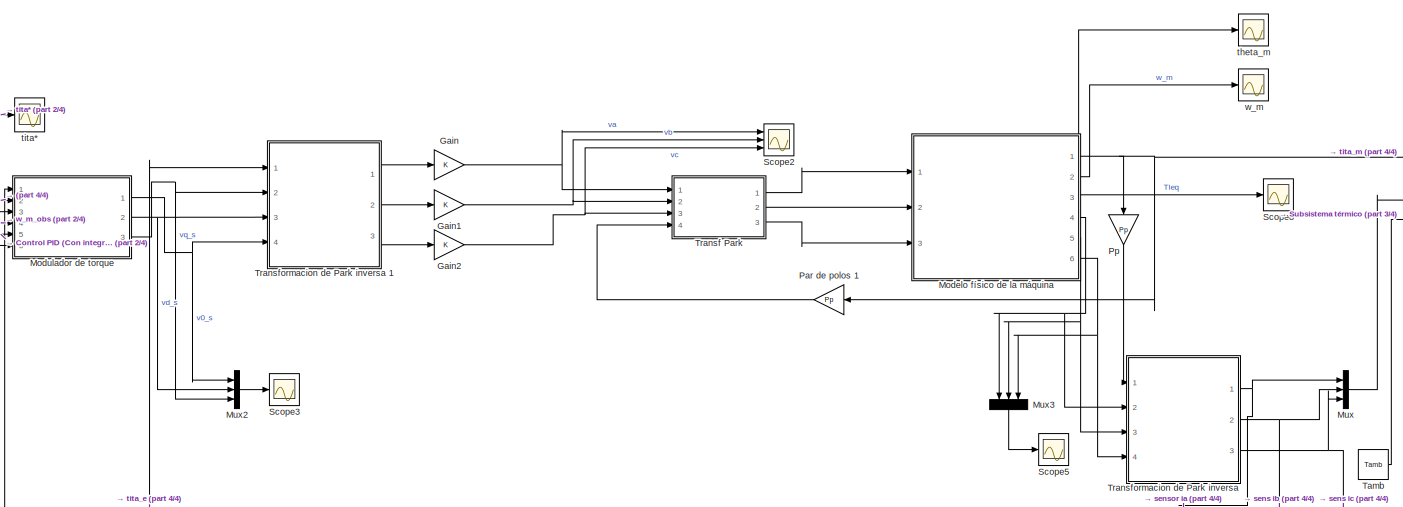
[diagram: root canvas - part 1/4, top center region]
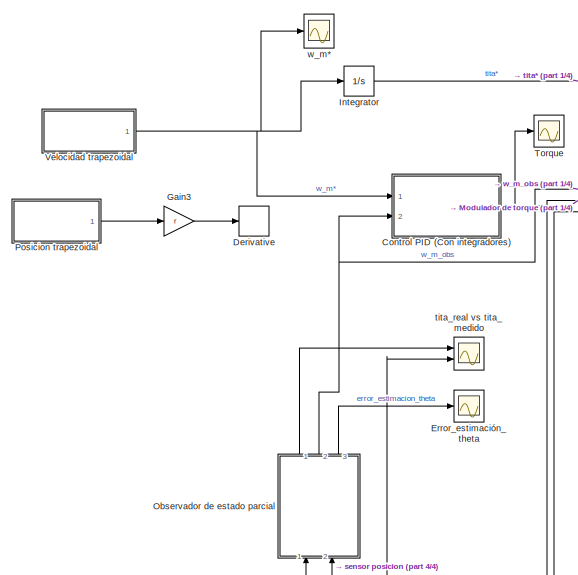
[diagram: root canvas - part 2/4, middle left region]
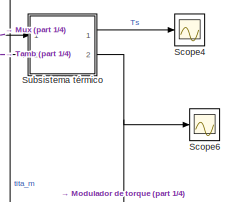
[diagram: root canvas - part 3/4, top right region]
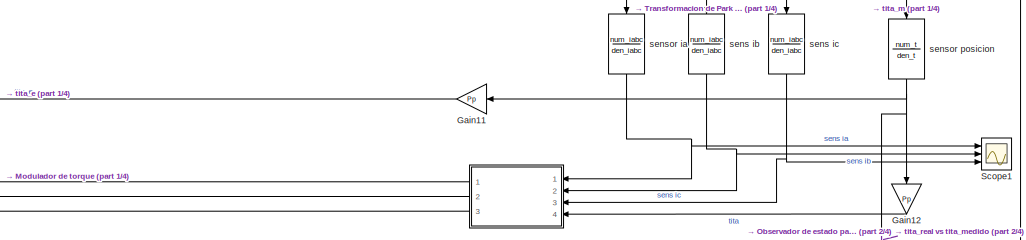
[diagram: root canvas - part 4/4, bottom right region]
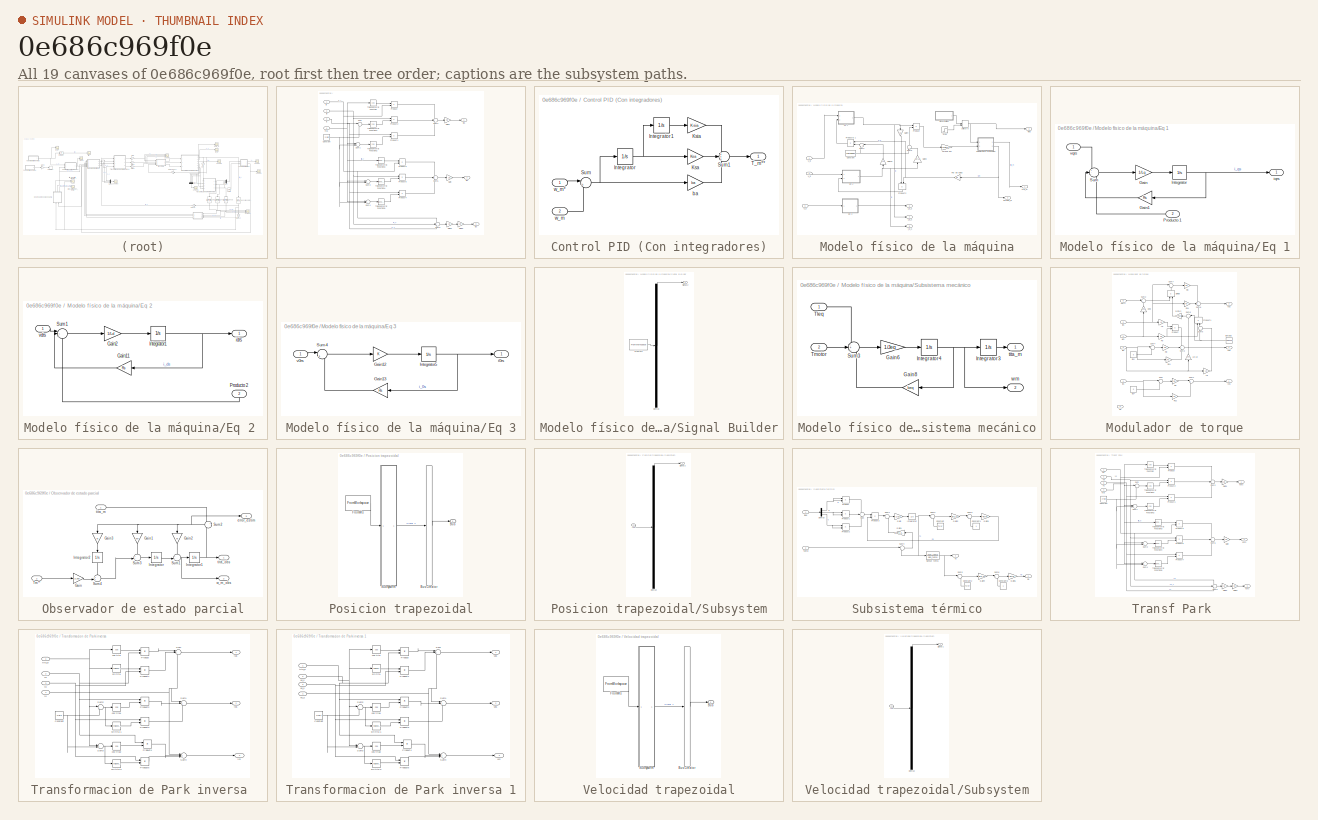
[diagram: thumbnail index - all 19 canvases of the model, root first then tree order]
MODEL slx_0e686c969f0e
KIND model
CONFIG AbsTol = auto
CONFIG EnableMultiTasking = off
CONFIG FixedStep = auto
CONFIG MaxStep = auto
CONFIG MinStep = auto
CONFIG RelTol = 1e-3
CONFIG SampleTimeConstraint = Unconstrained
CONFIG Solver = VariableStepAuto
CONFIG SolverName = VariableStepAuto
CONFIG StartTime = 0.0
CONFIG StopTime = 25
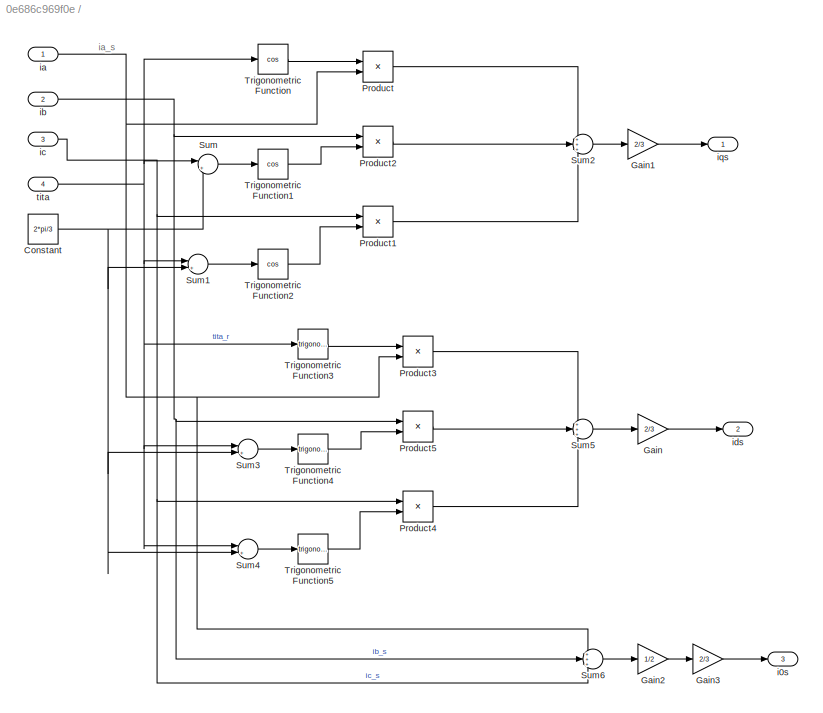
BLOCK [SubSystem]  
  Ports = [4, 3]
  RequestExecContextInheritance = off
  Variant = off
BLOCK [Constant]  /Constant
  Value = 2*pi/3
BLOCK [Gain]  /Gain
  Gain = 2/3
  OutDataTypeStr = Inherit: Inherit via internal rule
  ParamDataTypeStr = Inherit: Inherit via internal rule
  SaturateOnIntegerOverflow = off
BLOCK [Gain]  /Gain1
  Gain = 2/3
  OutDataTypeStr = Inherit: Inherit via internal rule
  ParamDataTypeStr = Inherit: Inherit via internal rule
  SaturateOnIntegerOverflow = off
BLOCK [Gain]  /Gain2
  Gain = 1/2
  OutDataTypeStr = Inherit: Inherit via internal rule
  ParamDataTypeStr = Inherit: Inherit via internal rule
  SaturateOnIntegerOverflow = off
BLOCK [Gain]  /Gain3
  Gain = 2/3
  OutDataTypeStr = Inherit: Inherit via internal rule
  ParamDataTypeStr = Inherit: Inherit via internal rule
  SaturateOnIntegerOverflow = off
BLOCK [Product]  /Product
  InputSameDT = off
  OutDataTypeStr = Inherit: Inherit via internal rule
  Ports = [2, 1]
  RndMeth = Floor
  SaturateOnIntegerOverflow = off
BLOCK [Product]  /Product1
  InputSameDT = off
  OutDataTypeStr = Inherit: Inherit via internal rule
  Ports = [2, 1]
  RndMeth = Floor
  SaturateOnIntegerOverflow = off
BLOCK [Product]  /Product2
  InputSameDT = off
  OutDataTypeStr = Inherit: Inherit via internal rule
  Ports = [2, 1]
  RndMeth = Floor
  SaturateOnIntegerOverflow = off
BLOCK [Product]  /Product3
  InputSameDT = off
  OutDataTypeStr = Inherit: Inherit via internal rule
  Ports = [2, 1]
  RndMeth = Floor
  SaturateOnIntegerOverflow = off
BLOCK [Product]  /Product4
  InputSameDT = off
  OutDataTypeStr = Inherit: Inherit via internal rule
  Ports = [2, 1]
  RndMeth = Floor
  SaturateOnIntegerOverflow = off
BLOCK [Product]  /Product5
  InputSameDT = off
  OutDataTypeStr = Inherit: Inherit via internal rule
  Ports = [2, 1]
  RndMeth = Floor
  SaturateOnIntegerOverflow = off
BLOCK [Sum]  /Sum
  IconShape = round
  InputSameDT = off
  Inputs = |+-
  OutDataTypeStr = Inherit: Inherit via internal rule
  Ports = [2, 1]
  SaturateOnIntegerOverflow = off
BLOCK [Sum]  /Sum1
  IconShape = round
  InputSameDT = off
  Inputs = |++
  OutDataTypeStr = Inherit: Inherit via internal rule
  Ports = [2, 1]
  SaturateOnIntegerOverflow = off
BLOCK [Sum]  /Sum2
  IconShape = round
  InputSameDT = off
  Inputs = +++
  OutDataTypeStr = Inherit: Inherit via internal rule
  Ports = [3, 1]
  SaturateOnIntegerOverflow = off
BLOCK [Sum]  /Sum3
  IconShape = round
  InputSameDT = off
  Inputs = |+-
  OutDataTypeStr = Inherit: Inherit via internal rule
  Ports = [2, 1]
  SaturateOnIntegerOverflow = off
BLOCK [Sum]  /Sum4
  IconShape = round
  InputSameDT = off
  Inputs = |++
  OutDataTypeStr = Inherit: Inherit via internal rule
  Ports = [2, 1]
  SaturateOnIntegerOverflow = off
BLOCK [Sum]  /Sum5
  IconShape = round
  InputSameDT = off
  Inputs = +++
  OutDataTypeStr = Inherit: Inherit via internal rule
  Ports = [3, 1]
  SaturateOnIntegerOverflow = off
BLOCK [Sum]  /Sum6
  IconShape = round
  InputSameDT = off
  Inputs = +++
  OutDataTypeStr = Inherit: Inherit via internal rule
  Ports = [3, 1]
  SaturateOnIntegerOverflow = off
BLOCK [Trigonometry]  /Trigonometric Function
  Operator = cos
  Ports = [1, 1]
BLOCK [Trigonometry]  /Trigonometric Function1
  Operator = cos
  Ports = [1, 1]
BLOCK [Trigonometry]  /Trigonometric Function2
  Operator = cos
  Ports = [1, 1]
BLOCK [Trigonometry]  /Trigonometric Function3
  Ports = [1, 1]
BLOCK [Trigonometry]  /Trigonometric Function4
  Ports = [1, 1]
BLOCK [Trigonometry]  /Trigonometric Function5
  Ports = [1, 1]
BLOCK [Outport]  /i0s 
  IconDisplay = Port number
  Port = 3
BLOCK [Inport]  /ia 
  IconDisplay = Port number
BLOCK [Inport]  /ib 
  IconDisplay = Port number
  Port = 2
BLOCK [Inport]  /ic 
  IconDisplay = Port number
  Port = 3
BLOCK [Outport]  /ids 
  IconDisplay = Port number
  Port = 2
BLOCK [Outport]  /iqs
  IconDisplay = Port number
BLOCK [Inport]  /tita 
  IconDisplay = Port number
  Port = 4
BLOCK [SubSystem] Control PID (Con integradores)
  Ports = [2, 1]
  RequestExecContextInheritance = off
  Variant = off
BLOCK [Integrator] Control PID (Con integradores)/Integrator
  Ports = [1, 1]
BLOCK [Integrator] Control PID (Con integradores)/Integrator1
  Ports = [1, 1]
BLOCK [Gain] Control PID (Con integradores)/Ksa
  Gain = Ksa
  OutDataTypeStr = Inherit: Inherit via internal rule
  ParamDataTypeStr = Inherit: Inherit via internal rule
  SaturateOnIntegerOverflow = off
BLOCK [Gain] Control PID (Con integradores)/Ksia
  Gain = Ksia
  OutDataTypeStr = Inherit: Inherit via internal rule
  ParamDataTypeStr = Inherit: Inherit via internal rule
  SaturateOnIntegerOverflow = off
BLOCK [Sum] Control PID (Con integradores)/Sum
  IconShape = round
  InputSameDT = off
  Inputs = |+-
  OutDataTypeStr = Inherit: Inherit via internal rule
  Ports = [2, 1]
  SaturateOnIntegerOverflow = off
BLOCK [Sum] Control PID (Con integradores)/Sum1
  IconShape = round
  InputSameDT = off
  Inputs = +++
  OutDataTypeStr = Inherit: Inherit via internal rule
  Ports = [3, 1]
  SaturateOnIntegerOverflow = off
BLOCK [Outport] Control PID (Con integradores)/T_m**
  IconDisplay = Port number
BLOCK [Gain] Control PID (Con integradores)/ba
  Gain = ba
  OutDataTypeStr = Inherit: Inherit via internal rule
  ParamDataTypeStr = Inherit: Inherit via internal rule
  SaturateOnIntegerOverflow = off
BLOCK [Inport] Control PID (Con integradores)/w_m
  IconDisplay = Port number
  Port = 2
BLOCK [Inport] Control PID (Con integradores)/w_m*
  IconDisplay = Port number
BLOCK [Derivative] Derivative
BLOCK [Scope] Error_estimación_theta
  NumInputPorts = 1
  Ports = [1]
  ScopeSpecificationString = Simulink.scopes.TimeScopeBlockCfg('CurrentConfiguration', extmgr.ConfigurationSet(extmgr.Configuration('Core','General UI',true,'FigureColor',[0.247058823529412 0.247058823529412 0.247058823529412],'DisplayFullSourceName',true),extmgr.Configuration('Core','Source UI',true),extmgr.Configuration('Sources','WiredSimulink',true,'DataLoggingVariableName','ScopeData2'),extmgr.Configuration('Visuals','Ti...<+1670ch>
BLOCK [Gain] Gain
  OutDataTypeStr = Inherit: Inherit via internal rule
  ParamDataTypeStr = Inherit: Inherit via internal rule
  SaturateOnIntegerOverflow = off
BLOCK [Gain] Gain1
  OutDataTypeStr = Inherit: Inherit via internal rule
  ParamDataTypeStr = Inherit: Inherit via internal rule
  SaturateOnIntegerOverflow = off
BLOCK [Gain] Gain11
  Gain = Pp
  OutDataTypeStr = Inherit: Inherit via internal rule
  ParamDataTypeStr = Inherit: Inherit via internal rule
  SaturateOnIntegerOverflow = off
BLOCK [Gain] Gain12
  Gain = Pp
  OutDataTypeStr = Inherit: Inherit via internal rule
  ParamDataTypeStr = Inherit: Inherit via internal rule
  SaturateOnIntegerOverflow = off
BLOCK [Gain] Gain2
  OutDataTypeStr = Inherit: Inherit via internal rule
  ParamDataTypeStr = Inherit: Inherit via internal rule
  SaturateOnIntegerOverflow = off
BLOCK [Gain] Gain3
  Gain = r
  OutDataTypeStr = Inherit: Inherit via internal rule
  ParamDataTypeStr = Inherit: Inherit via internal rule
  SaturateOnIntegerOverflow = off
BLOCK [Integrator] Integrator
  Ports = [1, 1]
BLOCK [SubSystem] Modelo físico de la máquina
  Ports = [3, 6]
  RequestExecContextInheritance = off
  Variant = off
BLOCK [Constant] Modelo físico de la máquina/Constant
  Value = LambdaM
BLOCK [SubSystem] Modelo físico de la máquina/Eq 1
  Ports = [2, 1]
  RequestExecContextInheritance = off
  Variant = off
BLOCK [Gain] Modelo físico de la máquina/Eq 1/Gain
  Gain = 1/Lq
  OutDataTypeStr = Inherit: Inherit via internal rule
  ParamDataTypeStr = Inherit: Inherit via internal rule
  SaturateOnIntegerOverflow = off
BLOCK [Gain] Modelo físico de la máquina/Eq 1/Gain1
  Gain = Rs
  OutDataTypeStr = Inherit: Inherit via internal rule
  ParamDataTypeStr = Inherit: Inherit via internal rule
  SaturateOnIntegerOverflow = off
BLOCK [Integrator] Modelo físico de la máquina/Eq 1/Integrator
  Ports = [1, 1]
BLOCK [Inport] Modelo físico de la máquina/Eq 1/Producto 1 
  IconDisplay = Port number
  Port = 2
BLOCK [Sum] Modelo físico de la máquina/Eq 1/Sum
  IconShape = round
  InputSameDT = off
  Inputs = +--
  OutDataTypeStr = Inherit: Inherit via internal rule
  Ports = [3, 1]
  SaturateOnIntegerOverflow = off
BLOCK [Outport] Modelo físico de la máquina/Eq 1/iqrs 
  IconDisplay = Port number
BLOCK [Inport] Modelo físico de la máquina/Eq 1/vqrs
  IconDisplay = Port number
BLOCK [SubSystem] Modelo físico de la máquina/Eq 2 
  Ports = [2, 1]
  RequestExecContextInheritance = off
  Variant = off
BLOCK [Gain] Modelo físico de la máquina/Eq 2 /Gain11
  Gain = Rs
  OutDataTypeStr = Inherit: Inherit via internal rule
  ParamDataTypeStr = Inherit: Inherit via internal rule
  SaturateOnIntegerOverflow = off
BLOCK [Gain] Modelo físico de la máquina/Eq 2 /Gain2
  Gain = 1/Ld
  OutDataTypeStr = Inherit: Inherit via internal rule
  ParamDataTypeStr = Inherit: Inherit via internal rule
  SaturateOnIntegerOverflow = off
BLOCK [Integrator] Modelo físico de la máquina/Eq 2 /Integrator1
  Ports = [1, 1]
BLOCK [Inport] Modelo físico de la máquina/Eq 2 /Producto 2 
  IconDisplay = Port number
  Port = 2
BLOCK [Sum] Modelo físico de la máquina/Eq 2 /Sum1
  IconShape = round
  InputSameDT = off
  Inputs = |+-+
  OutDataTypeStr = Inherit: Inherit via internal rule
  Ports = [3, 1]
  SaturateOnIntegerOverflow = off
BLOCK [Outport] Modelo físico de la máquina/Eq 2 /idrs 
  IconDisplay = Port number
BLOCK [Inport] Modelo físico de la máquina/Eq 2 /vdrs 
  IconDisplay = Port number
BLOCK [SubSystem] Modelo físico de la máquina/Eq 3
  Ports = [1, 1]
  RequestExecContextInheritance = off
  Variant = off
BLOCK [Gain] Modelo físico de la máquina/Eq 3/Gain12
  OutDataTypeStr = Inherit: Inherit via internal rule
  ParamDataTypeStr = Inherit: Inherit via internal rule
  SaturateOnIntegerOverflow = off
BLOCK [Gain] Modelo físico de la máquina/Eq 3/Gain13
  Gain = Rs
  OutDataTypeStr = Inherit: Inherit via internal rule
  ParamDataTypeStr = Inherit: Inherit via internal rule
  SaturateOnIntegerOverflow = off
BLOCK [Integrator] Modelo físico de la máquina/Eq 3/Integrator5
  Ports = [1, 1]
BLOCK [Sum] Modelo físico de la máquina/Eq 3/Sum4
  IconShape = round
  InputSameDT = off
  Inputs = |++
  OutDataTypeStr = Inherit: Inherit via internal rule
  Ports = [2, 1]
  SaturateOnIntegerOverflow = off
BLOCK [Outport] Modelo físico de la máquina/Eq 3/i0rs 
  IconDisplay = Port number
BLOCK [Inport] Modelo físico de la máquina/Eq 3/v0rs 
  IconDisplay = Port number
BLOCK [Gain] Modelo físico de la máquina/Gain10
  Gain = Ld
  OutDataTypeStr = Inherit: Inherit via internal rule
  ParamDataTypeStr = Inherit: Inherit via internal rule
  SaturateOnIntegerOverflow = off
BLOCK [Gain] Modelo físico de la máquina/Gain3
  Gain = Ld-Lq
  OutDataTypeStr = Inherit: Inherit via internal rule
  ParamDataTypeStr = Inherit: Inherit via internal rule
  SaturateOnIntegerOverflow = off
BLOCK [Gain] Modelo físico de la máquina/Gain4
  Gain = Lq
  OutDataTypeStr = Inherit: Inherit via internal rule
  ParamDataTypeStr = Inherit: Inherit via internal rule
  SaturateOnIntegerOverflow = off
BLOCK [Gain] Modelo físico de la máquina/Par de polos
  Gain = Pp
  OutDataTypeStr = Inherit: Inherit via internal rule
  ParamDataTypeStr = Inherit: Inherit via internal rule
  SaturateOnIntegerOverflow = off
BLOCK [Product] Modelo físico de la máquina/Product
  InputSameDT = off
  OutDataTypeStr = Inherit: Inherit via internal rule
  Ports = [2, 1]
  RndMeth = Floor
  SaturateOnIntegerOverflow = off
BLOCK [Product] Modelo físico de la máquina/Product2
  InputSameDT = off
  OutDataTypeStr = Inherit: Inherit via internal rule
  Ports = [2, 1]
  RndMeth = Floor
  SaturateOnIntegerOverflow = off
BLOCK [Product] Modelo físico de la máquina/Producto 1
  InputSameDT = off
  OutDataTypeStr = Inherit: Inherit via internal rule
  Ports = [2, 1]
  RndMeth = Floor
  SaturateOnIntegerOverflow = off
BLOCK [SubSystem] Modelo físico de la máquina/Signal Builder
  ClipboardFcn = sigbuilder_block('clipboard');
  CloseFcn = sigbuilder_block('close');
  ContinueFcn = sigbuilder_block('continue');
  CopyFcn = sigbuilder_block('copy');
  DeleteFcn = sigbuilder_block('delete');
  LoadFcn = sigbuilder_block('load');
  MaskHideContents = on
  ModelCloseFcn = sigbuilder_block('modelClose');
  NameChangeFcn = sigbuilder_block('namechange');
  OpenFcn = sigbuilder_block('open',[0 30 1024.5 488.25 ]);
  PauseFcn = sigbuilder_block('pause');
  Ports = [0, 1]
  PreSaveFcn = sigbuilder_block('preSave');
  RequestExecContextInheritance = off
  StartFcn = sigbuilder_block('start');
  StopFcn = sigbuilder_block('stop');
  Tag = STV Subsys
  Variant = off
BLOCK [Demux] Modelo físico de la máquina/Signal Builder/Demux
  Outputs = 1
  Ports = [1, 1]
  Tag = STV Demux
BLOCK [FromWorkspace] Modelo físico de la máquina/Signal Builder/FromWs
  SampleTime = 0
  Tag = STV FromWs
  VariableName = tuvar
  ZeroCross = on
BLOCK [Outport] Modelo físico de la máquina/Signal Builder/Signal 2
  IconDisplay = Port number
  Tag = STV Outport
BLOCK [Step] Modelo físico de la máquina/Step
  After = Tleq
  SampleTime = 0
  Time = 0.3
BLOCK [SubSystem] Modelo físico de la máquina/Subsistema mecánico
  Ports = [2, 2]
  RequestExecContextInheritance = off
  Variant = off
BLOCK [Gain] Modelo físico de la máquina/Subsistema mecánico/Gain6
  Gain = 1/Jeq
  OutDataTypeStr = Inherit: Inherit via internal rule
  ParamDataTypeStr = Inherit: Inherit via internal rule
  SaturateOnIntegerOverflow = off
BLOCK [Gain] Modelo físico de la máquina/Subsistema mecánico/Gain8
  Gain = beq
  OutDataTypeStr = Inherit: Inherit via internal rule
  ParamDataTypeStr = Inherit: Inherit via internal rule
  SaturateOnIntegerOverflow = off
BLOCK [Integrator] Modelo físico de la máquina/Subsistema mecánico/Integrator3
  Ports = [1, 1]
BLOCK [Integrator] Modelo físico de la máquina/Subsistema mecánico/Integrator4
  Ports = [1, 1]
BLOCK [Sum] Modelo físico de la máquina/Subsistema mecánico/Sum3
  IconShape = round
  InputSameDT = off
  Inputs = -+-
  OutDataTypeStr = Inherit: Inherit via internal rule
  Ports = [3, 1]
  SaturateOnIntegerOverflow = off
BLOCK [Inport] Modelo físico de la máquina/Subsistema mecánico/Tleq 
  IconDisplay = Port number
BLOCK [Inport] Modelo físico de la máquina/Subsistema mecánico/Tmotor 
  IconDisplay = Port number
  Port = 2
BLOCK [Outport] Modelo físico de la máquina/Subsistema mecánico/tita_m 
  IconDisplay = Port number
BLOCK [Outport] Modelo físico de la máquina/Subsistema mecánico/wm 
  IconDisplay = Port number
  Port = 2
BLOCK [Sum] Modelo físico de la máquina/Sum2
  IconShape = round
  InputSameDT = off
  Inputs = |++
  OutDataTypeStr = Inherit: Inherit via internal rule
  Ports = [2, 1]
  SaturateOnIntegerOverflow = off
BLOCK [Sum] Modelo físico de la máquina/Sum5
  IconShape = round
  InputSameDT = off
  Inputs = |++
  OutDataTypeStr = Inherit: Inherit via internal rule
  Ports = [2, 1]
  SaturateOnIntegerOverflow = off
BLOCK [Outport] Modelo físico de la máquina/Tleq
  IconDisplay = Port number
  Port = 3
BLOCK [Gain] Modelo físico de la máquina/Torque em 
  Gain = 3*Pp/2
  OutDataTypeStr = Inherit: Inherit via internal rule
  ParamDataTypeStr = Inherit: Inherit via internal rule
  SaturateOnIntegerOverflow = off
BLOCK [Inport] Modelo físico de la máquina/V_0
  IconDisplay = Port number
  Port = 3
BLOCK [Inport] Modelo físico de la máquina/V_d
  IconDisplay = Port number
  Port = 2
BLOCK [Inport] Modelo físico de la máquina/V_q
  IconDisplay = Port number
BLOCK [Outport] Modelo físico de la máquina/i_0_s 
  IconDisplay = Port number
  Port = 6
BLOCK [Outport] Modelo físico de la máquina/i_d_s 
  IconDisplay = Port number
  Port = 5
BLOCK [Outport] Modelo físico de la máquina/i_q_s 
  IconDisplay = Port number
  Port = 4
BLOCK [Outport] Modelo físico de la máquina/omega_m 
  IconDisplay = Port number
  Port = 2
BLOCK [ManualSwitch] Modelo físico de la máquina/switch 0
  CurrentSetting = 0
BLOCK [Outport] Modelo físico de la máquina/tita_m 
  IconDisplay = Port number
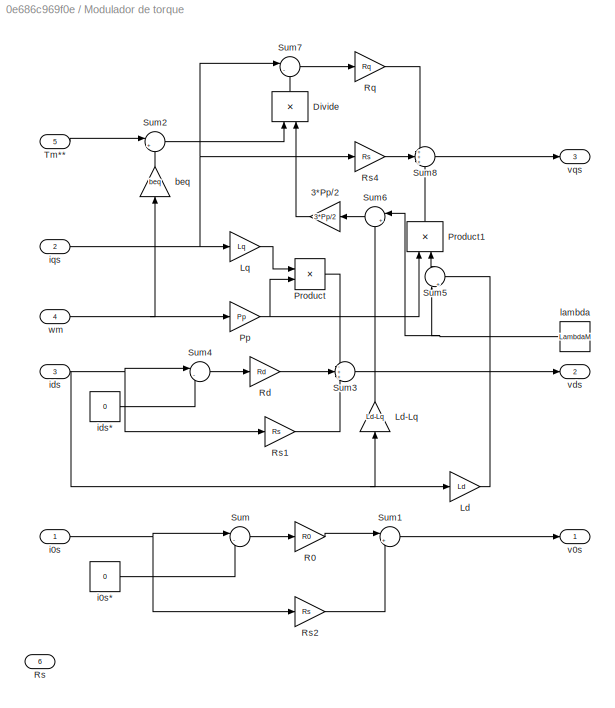
BLOCK [SubSystem] Modulador de torque
  Ports = [6, 3]
  RequestExecContextInheritance = off
  Variant = off
BLOCK [Gain] Modulador de torque/3*Pp//2
  Gain = 3*Pp/2
  OutDataTypeStr = Inherit: Inherit via internal rule
  ParamDataTypeStr = Inherit: Inherit via internal rule
  SaturateOnIntegerOverflow = off
BLOCK [Product] Modulador de torque/Divide
  InputSameDT = off
  Inputs = */
  OutDataTypeStr = Inherit: Inherit via internal rule
  Ports = [2, 1]
  RndMeth = Floor
  SaturateOnIntegerOverflow = off
BLOCK [Gain] Modulador de torque/Ld
  Gain = Ld
  OutDataTypeStr = Inherit: Inherit via internal rule
  ParamDataTypeStr = Inherit: Inherit via internal rule
  SaturateOnIntegerOverflow = off
BLOCK [Gain] Modulador de torque/Ld-Lq
  Gain = Ld-Lq
  OutDataTypeStr = Inherit: Inherit via internal rule
  ParamDataTypeStr = Inherit: Inherit via internal rule
  SaturateOnIntegerOverflow = off
BLOCK [Gain] Modulador de torque/Lq
  Gain = Lq
  OutDataTypeStr = Inherit: Inherit via internal rule
  ParamDataTypeStr = Inherit: Inherit via internal rule
  SaturateOnIntegerOverflow = off
BLOCK [Gain] Modulador de torque/Pp
  Gain = Pp
  OutDataTypeStr = Inherit: Inherit via internal rule
  ParamDataTypeStr = Inherit: Inherit via internal rule
  SaturateOnIntegerOverflow = off
BLOCK [Product] Modulador de torque/Product
  InputSameDT = off
  OutDataTypeStr = Inherit: Inherit via internal rule
  Ports = [2, 1]
  RndMeth = Floor
  SaturateOnIntegerOverflow = off
BLOCK [Product] Modulador de torque/Product1
  InputSameDT = off
  OutDataTypeStr = Inherit: Inherit via internal rule
  Ports = [2, 1]
  RndMeth = Floor
  SaturateOnIntegerOverflow = off
BLOCK [Gain] Modulador de torque/R0
  Gain = R0
  OutDataTypeStr = Inherit: Inherit via internal rule
  ParamDataTypeStr = Inherit: Inherit via internal rule
  SaturateOnIntegerOverflow = off
BLOCK [Gain] Modulador de torque/Rd
  Gain = Rd
  OutDataTypeStr = Inherit: Inherit via internal rule
  ParamDataTypeStr = Inherit: Inherit via internal rule
  SaturateOnIntegerOverflow = off
BLOCK [Gain] Modulador de torque/Rq
  Gain = Rq
  OutDataTypeStr = Inherit: Inherit via internal rule
  ParamDataTypeStr = Inherit: Inherit via internal rule
  SaturateOnIntegerOverflow = off
BLOCK [Inport] Modulador de torque/Rs
  IconDisplay = Port number
  Port = 6
BLOCK [Gain] Modulador de torque/Rs1
  Gain = Rs
  OutDataTypeStr = Inherit: Inherit via internal rule
  ParamDataTypeStr = Inherit: Inherit via internal rule
  SaturateOnIntegerOverflow = off
BLOCK [Gain] Modulador de torque/Rs2 
  Gain = Rs
  OutDataTypeStr = Inherit: Inherit via internal rule
  ParamDataTypeStr = Inherit: Inherit via internal rule
  SaturateOnIntegerOverflow = off
BLOCK [Gain] Modulador de torque/Rs4 
  Gain = Rs
  OutDataTypeStr = Inherit: Inherit via internal rule
  ParamDataTypeStr = Inherit: Inherit via internal rule
  SaturateOnIntegerOverflow = off
BLOCK [Sum] Modulador de torque/Sum
  IconShape = round
  InputSameDT = off
  Inputs = |-+
  OutDataTypeStr = Inherit: Inherit via internal rule
  Ports = [2, 1]
  SaturateOnIntegerOverflow = off
BLOCK [Sum] Modulador de torque/Sum1
  IconShape = round
  InputSameDT = off
  Inputs = |++
  OutDataTypeStr = Inherit: Inherit via internal rule
  Ports = [2, 1]
  SaturateOnIntegerOverflow = off
BLOCK [Sum] Modulador de torque/Sum2
  IconShape = round
  InputSameDT = off
  Inputs = |++
  OutDataTypeStr = Inherit: Inherit via internal rule
  Ports = [2, 1]
  SaturateOnIntegerOverflow = off
BLOCK [Sum] Modulador de torque/Sum3
  IconShape = round
  InputSameDT = off
  Inputs = -++
  OutDataTypeStr = Inherit: Inherit via internal rule
  Ports = [3, 1]
  SaturateOnIntegerOverflow = off
BLOCK [Sum] Modulador de torque/Sum4
  IconShape = round
  InputSameDT = off
  Inputs = |-+
  OutDataTypeStr = Inherit: Inherit via internal rule
  Ports = [2, 1]
  SaturateOnIntegerOverflow = off
BLOCK [Sum] Modulador de torque/Sum5
  IconShape = round
  InputSameDT = off
  Inputs = |++
  OutDataTypeStr = Inherit: Inherit via internal rule
  Ports = [2, 1]
  SaturateOnIntegerOverflow = off
BLOCK [Sum] Modulador de torque/Sum6
  IconShape = round
  InputSameDT = off
  Inputs = |++
  OutDataTypeStr = Inherit: Inherit via internal rule
  Ports = [2, 1]
  SaturateOnIntegerOverflow = off
BLOCK [Sum] Modulador de torque/Sum7
  IconShape = round
  InputSameDT = off
  Inputs = |-+
  OutDataTypeStr = Inherit: Inherit via internal rule
  Ports = [2, 1]
  SaturateOnIntegerOverflow = off
BLOCK [Sum] Modulador de torque/Sum8
  IconShape = round
  InputSameDT = off
  Inputs = +++
  OutDataTypeStr = Inherit: Inherit via internal rule
  Ports = [3, 1]
  SaturateOnIntegerOverflow = off
BLOCK [Inport] Modulador de torque/Tm**
  IconDisplay = Port number
  Port = 5
BLOCK [Gain] Modulador de torque/beq
  Gain = beq
  OutDataTypeStr = Inherit: Inherit via internal rule
  ParamDataTypeStr = Inherit: Inherit via internal rule
  SaturateOnIntegerOverflow = off
BLOCK [Inport] Modulador de torque/i0s
  IconDisplay = Port number
BLOCK [Constant] Modulador de torque/i0s*
  Value = 0
BLOCK [Inport] Modulador de torque/ids
  IconDisplay = Port number
  Port = 3
BLOCK [Constant] Modulador de torque/ids*
  Value = 0
BLOCK [Inport] Modulador de torque/iqs
  IconDisplay = Port number
  Port = 2
BLOCK [Constant] Modulador de torque/lambda
  Value = LambdaM
BLOCK [Outport] Modulador de torque/v0s
  IconDisplay = Port number
BLOCK [Outport] Modulador de torque/vds
  IconDisplay = Port number
  Port = 2
BLOCK [Outport] Modulador de torque/vqs
  IconDisplay = Port number
  Port = 3
BLOCK [Inport] Modulador de torque/wm
  IconDisplay = Port number
  Port = 4
BLOCK [Mux] Mux
  DisplayOption = bar
  Inputs = 3
  Ports = [3, 1]
BLOCK [Mux] Mux2
  DisplayOption = bar
  Inputs = 3
  Ports = [3, 1]
BLOCK [Mux] Mux3
  DisplayOption = bar
  Inputs = 3
  Ports = [3, 1]
BLOCK [SubSystem] Observador de estado parcial
  Ports = [2, 3]
  RequestExecContextInheritance = off
  Variant = off
BLOCK [Gain] Observador de estado parcial/Gain
  Gain = 1/Jeq
  OutDataTypeStr = Inherit: Inherit via internal rule
  ParamDataTypeStr = Inherit: Inherit via internal rule
  SaturateOnIntegerOverflow = off
BLOCK [Gain] Observador de estado parcial/Gain1
  Gain = kw
  OutDataTypeStr = Inherit: Inherit via internal rule
  ParamDataTypeStr = Inherit: Inherit via internal rule
  SaturateOnIntegerOverflow = off
BLOCK [Gain] Observador de estado parcial/Gain2
  Gain = kt
  OutDataTypeStr = Inherit: Inherit via internal rule
  ParamDataTypeStr = Inherit: Inherit via internal rule
  SaturateOnIntegerOverflow = off
BLOCK [Gain] Observador de estado parcial/Gain3
  Gain = ki
  OutDataTypeStr = Inherit: Inherit via internal rule
  ParamDataTypeStr = Inherit: Inherit via internal rule
  SaturateOnIntegerOverflow = off
BLOCK [Integrator] Observador de estado parcial/Integrator
  Ports = [1, 1]
BLOCK [Integrator] Observador de estado parcial/Integrator1
  Ports = [1, 1]
BLOCK [Integrator] Observador de estado parcial/Integrator2
  Ports = [1, 1]
BLOCK [Sum] Observador de estado parcial/Sum1
  IconShape = round
  InputSameDT = off
  Inputs = ++|
  OutDataTypeStr = Inherit: Inherit via internal rule
  Ports = [2, 1]
  SaturateOnIntegerOverflow = off
BLOCK [Sum] Observador de estado parcial/Sum2
  IconShape = round
  InputSameDT = off
  Inputs = +-
  OutDataTypeStr = Inherit: Inherit via internal rule
  Ports = [2, 1]
  SaturateOnIntegerOverflow = off
BLOCK [Sum] Observador de estado parcial/Sum3
  IconShape = round
  InputSameDT = off
  Inputs = ++|
  OutDataTypeStr = Inherit: Inherit via internal rule
  Ports = [2, 1]
  SaturateOnIntegerOverflow = off
BLOCK [Sum] Observador de estado parcial/Sum4
  IconShape = round
  InputSameDT = off
  Inputs = ++|
  OutDataTypeStr = Inherit: Inherit via internal rule
  Ports = [2, 1]
  SaturateOnIntegerOverflow = off
BLOCK [Inport] Observador de estado parcial/Tm**
  IconDisplay = Port number
  Port = 2
BLOCK [Outport] Observador de estado parcial/error_estim
  IconDisplay = Port number
  Port = 3
BLOCK [Inport] Observador de estado parcial/tita_m
  IconDisplay = Port number
BLOCK [Outport] Observador de estado parcial/tita_obs 
  IconDisplay = Port number
BLOCK [Outport] Observador de estado parcial/w_m_obs
  IconDisplay = Port number
  Port = 2
BLOCK [Gain] Par de polos 1
  Gain = Pp
  OutDataTypeStr = Inherit: Inherit via internal rule
  ParamDataTypeStr = Inherit: Inherit via internal rule
  SaturateOnIntegerOverflow = off
BLOCK [SubSystem] Posicion trapezoidal
  ClipboardFcn = sigbuilder_block('clipboard');
  CloseFcn = sigbuilder_block('close');
  ContinueFcn = sigbuilder_block('continue');
  CopyFcn = sigbuilder_block('copy');
  DeleteFcn = sigbuilder_block('delete');
  LoadFcn = sigbuilder_block('load');
  MaskHideContents = on
  ModelCloseFcn = sigbuilder_block('modelClose');
  NameChangeFcn = sigbuilder_block('namechange');
  OpenFcn = sigbuilder_block('open',[6 30 1012.5 447.75 ]);
  PauseFcn = sigbuilder_block('pause');
  Ports = [0, 1]
  PreSaveFcn = sigbuilder_block('preSave');
  RequestExecContextInheritance = off
  StartFcn = sigbuilder_block('start');
  StopFcn = sigbuilder_block('stop');
  Tag = STV Subsys
  Variant = off
BLOCK [Outport] Posicion trapezoidal/Bus
  IconDisplay = Port number
BLOCK [BusCreator] Posicion trapezoidal/Bus Creator
  InheritFromInputs = on
  Inputs = 1
  Ports = [1, 1]
  Tag = Bus Creator
BLOCK [FromWorkspace] Posicion trapezoidal/FromWs
  SampleTime = 0
  Tag = STV FromWs
  VariableName = tuvar
  ZeroCross = on
BLOCK [SubSystem] Posicion trapezoidal/Subsystem
  Ports = [1, 1]
  RequestExecContextInheritance = off
  Variant = off
BLOCK [Demux] Posicion trapezoidal/Subsystem/Demux
  Outputs = 1
  Ports = [1, 1]
  Tag = STV Demux
BLOCK [Inport] Posicion trapezoidal/Subsystem/In1
  IconDisplay = Port number
BLOCK [Outport] Posicion trapezoidal/Subsystem/Signal 2
  IconDisplay = Port number
  Tag = STV Outport
BLOCK [Gain] Pp
  Gain = Pp
  OutDataTypeStr = Inherit: Inherit via internal rule
  ParamDataTypeStr = Inherit: Inherit via internal rule
  SaturateOnIntegerOverflow = off
BLOCK [Scope] Scope1
  NumInputPorts = 3
  Ports = [3]
  ScopeSpecificationString = Simulink.scopes.TimeScopeBlockCfg('CurrentConfiguration', extmgr.ConfigurationSet(extmgr.Configuration('Core','General UI',true),extmgr.Configuration('Core','Source UI',true),extmgr.Configuration('Sources','WiredSimulink',true,'DataLoggingVariableName','ScopeData4'),extmgr.Configuration('Visuals','Time Domain',true,'SerializedDisplays',{struct('MinYLimReal','-0.61507','MaxYLimReal','0.67451','YLab...<+1455ch>
BLOCK [Scope] Scope2
  NumInputPorts = 3
  Ports = [3]
  ScopeSpecificationString = Simulink.scopes.TimeScopeBlockCfg('CurrentConfiguration', extmgr.ConfigurationSet(extmgr.Configuration('Core','General UI',true,'FigureColor',[0.247058823529412 0.247058823529412 0.247058823529412]),extmgr.Configuration('Core','Source UI',true),extmgr.Configuration('Sources','WiredSimulink',true,'DataLoggingVariableName','ScopeData5'),extmgr.Configuration('Visuals','Time Domain',true,'SerializedDi...<+1567ch>
BLOCK [Scope] Scope3
  NumInputPorts = 1
  Ports = [1]
  ScopeSpecificationString = Simulink.scopes.TimeScopeBlockCfg('CurrentConfiguration', extmgr.ConfigurationSet(extmgr.Configuration('Core','General UI',true),extmgr.Configuration('Core','Source UI',true),extmgr.Configuration('Sources','WiredSimulink',true,'DataLoggingVariableName','ScopeData6'),extmgr.Configuration('Visuals','Time Domain',true,'SerializedDisplays',{struct('MinYLimReal','-7.50857','MaxYLimReal','-5.51043','YLa...<+1787ch>
BLOCK [Scope] Scope4
  NumInputPorts = 1
  Ports = [1]
  ScopeSpecificationString = Simulink.scopes.TimeScopeBlockCfg('CurrentConfiguration', extmgr.ConfigurationSet(extmgr.Configuration('Core','General UI',true),extmgr.Configuration('Core','Source UI',true),extmgr.Configuration('Sources','WiredSimulink',true,'DataLoggingVariableName','ScopeData7'),extmgr.Configuration('Visuals','Time Domain',true,'SerializedDisplays',{struct('MinYLimReal','-3.77611','MaxYLimReal','33.98497','YLa...<+1759ch>
BLOCK [Scope] Scope5
  NumInputPorts = 1
  Ports = [1]
  ScopeSpecificationString = Simulink.scopes.TimeScopeBlockCfg('CurrentConfiguration', extmgr.ConfigurationSet(extmgr.Configuration('Core','General UI',true),extmgr.Configuration('Core','Source UI',true),extmgr.Configuration('Sources','WiredSimulink',true,'DataLoggingVariableName','ScopeData8'),extmgr.Configuration('Visuals','Time Domain',true,'SerializedDisplays',{struct('MinYLimReal','-12.09738','MaxYLimReal','45.33885','YL...<+1870ch>
BLOCK [Scope] Scope6
  NumInputPorts = 1
  Ports = [1]
  ScopeSpecificationString = Simulink.scopes.TimeScopeBlockCfg('CurrentConfiguration', extmgr.ConfigurationSet(extmgr.Configuration('Core','General UI',true),extmgr.Configuration('Core','Source UI',true),extmgr.Configuration('Sources','WiredSimulink',true,'DataLoggingVariableName','ScopeData4'),extmgr.Configuration('Visuals','Time Domain',true,'SerializedDisplays',{struct('MinYLimReal','0.70854','MaxYLimReal','0.90293','YLabe...<+1749ch>
BLOCK [Scope] Scope8
  NumInputPorts = 1
  Ports = [1]
  ScopeSpecificationString = Simulink.scopes.TimeScopeBlockCfg('CurrentConfiguration', extmgr.ConfigurationSet(extmgr.Configuration('Core','General UI',true),extmgr.Configuration('Core','Source UI',true),extmgr.Configuration('Sources','WiredSimulink',true,'DataLoggingVariableName','ScopeData3'),extmgr.Configuration('Visuals','Time Domain',true,'SerializedDisplays',{struct('MinYLimReal','-3.80296','MaxYLimReal','34.2266','YLab...<+1750ch>
BLOCK [SubSystem] Subsistema térmico
  Ports = [2, 2]
  RequestExecContextInheritance = off
  Variant = off
BLOCK [Constant] Subsistema térmico/Constant
  Value = Tsref
BLOCK [Constant] Subsistema térmico/Constant1
BLOCK [Constant] Subsistema térmico/Constant2
  Value = Tsref
BLOCK [Constant] Subsistema térmico/Constant3
BLOCK [Demux] Subsistema térmico/Demux
  DisplayOption = bar
  Outputs = 3
  Ports = [1, 3]
BLOCK [Gain] Subsistema térmico/Gain
  Gain = 1/Cts
  OutDataTypeStr = Inherit: Inherit via internal rule
  ParamDataTypeStr = Inherit: Inherit via internal rule
  SaturateOnIntegerOverflow = off
BLOCK [Gain] Subsistema térmico/Gain1
  Gain = 1/Rts_amb
  OutDataTypeStr = Inherit: Inherit via internal rule
  ParamDataTypeStr = Inherit: Inherit via internal rule
  SaturateOnIntegerOverflow = off
BLOCK [Gain] Subsistema térmico/Gain2
  Gain = alfa_cu
  OutDataTypeStr = Inherit: Inherit via internal rule
  ParamDataTypeStr = Inherit: Inherit via internal rule
  SaturateOnIntegerOverflow = off
BLOCK [Gain] Subsistema térmico/Gain3
  Gain = Rsref
  OutDataTypeStr = Inherit: Inherit via internal rule
  ParamDataTypeStr = Inherit: Inherit via internal rule
  SaturateOnIntegerOverflow = off
BLOCK [Gain] Subsistema térmico/Gain4
  Gain = alfa_cu
  OutDataTypeStr = Inherit: Inherit via internal rule
  ParamDataTypeStr = Inherit: Inherit via internal rule
  SaturateOnIntegerOverflow = off
BLOCK [Gain] Subsistema térmico/Gain5
  Gain = Rsref
  OutDataTypeStr = Inherit: Inherit via internal rule
  ParamDataTypeStr = Inherit: Inherit via internal rule
  SaturateOnIntegerOverflow = off
BLOCK [Integrator] Subsistema térmico/Integrator
  InitialCondition = 40
  Ports = [1, 1]
BLOCK [Product] Subsistema térmico/Product
  InputSameDT = off
  OutDataTypeStr = Inherit: Inherit via internal rule
  Ports = [2, 1]
  RndMeth = Floor
  SaturateOnIntegerOverflow = off
BLOCK [Product] Subsistema térmico/Product1
  InputSameDT = off
  OutDataTypeStr = Inherit: Inherit via internal rule
  Ports = [2, 1]
  RndMeth = Floor
  SaturateOnIntegerOverflow = off
BLOCK [Product] Subsistema térmico/Product2
  InputSameDT = off
  OutDataTypeStr = Inherit: Inherit via internal rule
  Ports = [2, 1]
  RndMeth = Floor
  SaturateOnIntegerOverflow = off
BLOCK [Product] Subsistema térmico/Product3
  InputSameDT = off
  OutDataTypeStr = Inherit: Inherit via internal rule
  Ports = [2, 1]
  RndMeth = Floor
  SaturateOnIntegerOverflow = off
BLOCK [Outport] Subsistema térmico/Rs
  IconDisplay = Port number
  Port = 2
BLOCK [TransferFcn] Subsistema térmico/Sensor temp.
  Denominator = den_temp
  Numerator = num_temp
BLOCK [Sum] Subsistema térmico/Sum
  IconShape = round
  InputSameDT = off
  Inputs = +++
  OutDataTypeStr = Inherit: Inherit via internal rule
  Ports = [3, 1]
  SaturateOnIntegerOverflow = off
BLOCK [Sum] Subsistema térmico/Sum1
  IconShape = round
  InputSameDT = off
  Inputs = |+-
  OutDataTypeStr = Inherit: Inherit via internal rule
  Ports = [2, 1]
  SaturateOnIntegerOverflow = off
BLOCK [Sum] Subsistema térmico/Sum2
  IconShape = round
  InputSameDT = off
  Inputs = |+-
  OutDataTypeStr = Inherit: Inherit via internal rule
  Ports = [2, 1]
  SaturateOnIntegerOverflow = off
BLOCK [Sum] Subsistema térmico/Sum3
  IconShape = round
  InputSameDT = off
  Inputs = |++
  OutDataTypeStr = Inherit: Inherit via internal rule
  Ports = [2, 1]
  SaturateOnIntegerOverflow = off
BLOCK [Sum] Subsistema térmico/Sum4
  IconShape = round
  InputSameDT = off
  Inputs = |-+
  OutDataTypeStr = Inherit: Inherit via internal rule
  Ports = [2, 1]
  SaturateOnIntegerOverflow = off
BLOCK [Sum] Subsistema térmico/Sum5
  IconShape = round
  InputSameDT = off
  Inputs = |+-
  OutDataTypeStr = Inherit: Inherit via internal rule
  Ports = [2, 1]
  SaturateOnIntegerOverflow = off
BLOCK [Sum] Subsistema térmico/Sum6
  IconShape = round
  InputSameDT = off
  Inputs = |++
  OutDataTypeStr = Inherit: Inherit via internal rule
  Ports = [2, 1]
  SaturateOnIntegerOverflow = off
BLOCK [Inport] Subsistema térmico/Tamb 
  IconDisplay = Port number
  Port = 2
BLOCK [Outport] Subsistema térmico/Ts
  IconDisplay = Port number
BLOCK [Inport] Subsistema térmico/iabc
  IconDisplay = Port number
BLOCK [Constant] Tamb 
  Value = Tamb
BLOCK [Scope] Torque
  NumInputPorts = 1
  Ports = [1]
  ScopeSpecificationString = Simulink.scopes.TimeScopeBlockCfg('CurrentConfiguration', extmgr.ConfigurationSet(extmgr.Configuration('Core','General UI',true),extmgr.Configuration('Core','Source UI',true),extmgr.Configuration('Sources','WiredSimulink',true,'DataLoggingVariableName','ScopeData1'),extmgr.Configuration('Visuals','Time Domain',true,'SerializedDisplays',{struct('MinYLimReal','-0.2494','MaxYLimReal','0.15128','YLabe...<+1810ch>
BLOCK [SubSystem] Transf Park 
  Ports = [4, 3]
  RequestExecContextInheritance = off
  Variant = off
BLOCK [Constant] Transf Park /Constant
  Value = 2*pi/3
BLOCK [Gain] Transf Park /Gain
  Gain = 2/3
  OutDataTypeStr = Inherit: Inherit via internal rule
  ParamDataTypeStr = Inherit: Inherit via internal rule
  SaturateOnIntegerOverflow = off
BLOCK [Gain] Transf Park /Gain1
  Gain = 2/3
  OutDataTypeStr = Inherit: Inherit via internal rule
  ParamDataTypeStr = Inherit: Inherit via internal rule
  SaturateOnIntegerOverflow = off
BLOCK [Gain] Transf Park /Gain2
  Gain = 1/2
  OutDataTypeStr = Inherit: Inherit via internal rule
  ParamDataTypeStr = Inherit: Inherit via internal rule
  SaturateOnIntegerOverflow = off
BLOCK [Gain] Transf Park /Gain3
  Gain = 2/3
  OutDataTypeStr = Inherit: Inherit via internal rule
  ParamDataTypeStr = Inherit: Inherit via internal rule
  SaturateOnIntegerOverflow = off
BLOCK [Product] Transf Park /Product
  InputSameDT = off
  OutDataTypeStr = Inherit: Inherit via internal rule
  Ports = [2, 1]
  RndMeth = Floor
  SaturateOnIntegerOverflow = off
BLOCK [Product] Transf Park /Product1
  InputSameDT = off
  OutDataTypeStr = Inherit: Inherit via internal rule
  Ports = [2, 1]
  RndMeth = Floor
  SaturateOnIntegerOverflow = off
BLOCK [Product] Transf Park /Product2
  InputSameDT = off
  OutDataTypeStr = Inherit: Inherit via internal rule
  Ports = [2, 1]
  RndMeth = Floor
  SaturateOnIntegerOverflow = off
BLOCK [Product] Transf Park /Product3
  InputSameDT = off
  OutDataTypeStr = Inherit: Inherit via internal rule
  Ports = [2, 1]
  RndMeth = Floor
  SaturateOnIntegerOverflow = off
BLOCK [Product] Transf Park /Product4
  InputSameDT = off
  OutDataTypeStr = Inherit: Inherit via internal rule
  Ports = [2, 1]
  RndMeth = Floor
  SaturateOnIntegerOverflow = off
BLOCK [Product] Transf Park /Product5
  InputSameDT = off
  OutDataTypeStr = Inherit: Inherit via internal rule
  Ports = [2, 1]
  RndMeth = Floor
  SaturateOnIntegerOverflow = off
BLOCK [Sum] Transf Park /Sum
  IconShape = round
  InputSameDT = off
  Inputs = |+-
  OutDataTypeStr = Inherit: Inherit via internal rule
  Ports = [2, 1]
  SaturateOnIntegerOverflow = off
BLOCK [Sum] Transf Park /Sum1
  IconShape = round
  InputSameDT = off
  Inputs = |++
  OutDataTypeStr = Inherit: Inherit via internal rule
  Ports = [2, 1]
  SaturateOnIntegerOverflow = off
BLOCK [Sum] Transf Park /Sum2
  IconShape = round
  InputSameDT = off
  Inputs = +++
  OutDataTypeStr = Inherit: Inherit via internal rule
  Ports = [3, 1]
  SaturateOnIntegerOverflow = off
BLOCK [Sum] Transf Park /Sum3
  IconShape = round
  InputSameDT = off
  Inputs = |+-
  OutDataTypeStr = Inherit: Inherit via internal rule
  Ports = [2, 1]
  SaturateOnIntegerOverflow = off
BLOCK [Sum] Transf Park /Sum4
  IconShape = round
  InputSameDT = off
  Inputs = |++
  OutDataTypeStr = Inherit: Inherit via internal rule
  Ports = [2, 1]
  SaturateOnIntegerOverflow = off
BLOCK [Sum] Transf Park /Sum5
  IconShape = round
  InputSameDT = off
  Inputs = +++
  OutDataTypeStr = Inherit: Inherit via internal rule
  Ports = [3, 1]
  SaturateOnIntegerOverflow = off
BLOCK [Sum] Transf Park /Sum6
  IconShape = round
  InputSameDT = off
  Inputs = +++
  OutDataTypeStr = Inherit: Inherit via internal rule
  Ports = [3, 1]
  SaturateOnIntegerOverflow = off
BLOCK [Trigonometry] Transf Park /Trigonometric Function
  Operator = cos
  Ports = [1, 1]
BLOCK [Trigonometry] Transf Park /Trigonometric Function1
  Operator = cos
  Ports = [1, 1]
BLOCK [Trigonometry] Transf Park /Trigonometric Function2
  Operator = cos
  Ports = [1, 1]
BLOCK [Trigonometry] Transf Park /Trigonometric Function3
  Ports = [1, 1]
BLOCK [Trigonometry] Transf Park /Trigonometric Function4
  Ports = [1, 1]
BLOCK [Trigonometry] Transf Park /Trigonometric Function5
  Ports = [1, 1]
BLOCK [Inport] Transf Park /tita
  IconDisplay = Port number
  Port = 4
BLOCK [Outport] Transf Park /v0rs 
  IconDisplay = Port number
  Port = 3
BLOCK [Inport] Transf Park /va 
  IconDisplay = Port number
BLOCK [Inport] Transf Park /vb
  IconDisplay = Port number
  Port = 2
BLOCK [Inport] Transf Park /vc
  IconDisplay = Port number
  Port = 3
BLOCK [Outport] Transf Park /vdrs 
  IconDisplay = Port number
  Port = 2
BLOCK [Outport] Transf Park /vqrs
  IconDisplay = Port number
BLOCK [SubSystem] Transformacion de Park inversa 
  Ports = [4, 3]
  RequestExecContextInheritance = off
  Variant = off
BLOCK [Constant] Transformacion de Park inversa /Constant
  Value = 2*pi/3
BLOCK [Product] Transformacion de Park inversa /Product
  InputSameDT = off
  OutDataTypeStr = Inherit: Inherit via internal rule
  Ports = [2, 1]
  RndMeth = Floor
  SaturateOnIntegerOverflow = off
BLOCK [Product] Transformacion de Park inversa /Product1
  InputSameDT = off
  OutDataTypeStr = Inherit: Inherit via internal rule
  Ports = [2, 1]
  RndMeth = Floor
  SaturateOnIntegerOverflow = off
BLOCK [Product] Transformacion de Park inversa /Product2
  InputSameDT = off
  OutDataTypeStr = Inherit: Inherit via internal rule
  Ports = [2, 1]
  RndMeth = Floor
  SaturateOnIntegerOverflow = off
BLOCK [Product] Transformacion de Park inversa /Product3
  InputSameDT = off
  OutDataTypeStr = Inherit: Inherit via internal rule
  Ports = [2, 1]
  RndMeth = Floor
  SaturateOnIntegerOverflow = off
BLOCK [Product] Transformacion de Park inversa /Product4
  InputSameDT = off
  OutDataTypeStr = Inherit: Inherit via internal rule
  Ports = [2, 1]
  RndMeth = Floor
  SaturateOnIntegerOverflow = off
BLOCK [Product] Transformacion de Park inversa /Product5
  InputSameDT = off
  OutDataTypeStr = Inherit: Inherit via internal rule
  Ports = [2, 1]
  RndMeth = Floor
  SaturateOnIntegerOverflow = off
BLOCK [Sum] Transformacion de Park inversa /Sum
  IconShape = round
  InputSameDT = off
  Inputs = |+++
  OutDataTypeStr = Inherit: Inherit via internal rule
  Ports = [3, 1]
  SaturateOnIntegerOverflow = off
BLOCK [Sum] Transformacion de Park inversa /Sum1
  IconShape = round
  InputSameDT = off
  Inputs = |+++
  OutDataTypeStr = Inherit: Inherit via internal rule
  Ports = [3, 1]
  SaturateOnIntegerOverflow = off
BLOCK [Sum] Transformacion de Park inversa /Sum2
  IconShape = round
  InputSameDT = off
  Inputs = |+-
  OutDataTypeStr = Inherit: Inherit via internal rule
  Ports = [2, 1]
  SaturateOnIntegerOverflow = off
BLOCK [Sum] Transformacion de Park inversa /Sum3
  IconShape = round
  InputSameDT = off
  Inputs = |++
  OutDataTypeStr = Inherit: Inherit via internal rule
  Ports = [2, 1]
  SaturateOnIntegerOverflow = off
BLOCK [Sum] Transformacion de Park inversa /Sum4
  IconShape = round
  InputSameDT = off
  Inputs = |+++
  OutDataTypeStr = Inherit: Inherit via internal rule
  Ports = [3, 1]
  SaturateOnIntegerOverflow = off
BLOCK [Trigonometry] Transformacion de Park inversa /cos tita
  Operator = cos
  Ports = [1, 1]
BLOCK [Trigonometry] Transformacion de Park inversa /cos tita1
  Operator = cos
  Ports = [1, 1]
BLOCK [Trigonometry] Transformacion de Park inversa /cos tita2
  Operator = cos
  Ports = [1, 1]
BLOCK [Inport] Transformacion de Park inversa /i0
  IconDisplay = Port number
  Port = 4
BLOCK [Outport] Transformacion de Park inversa /ias
  IconDisplay = Port number
BLOCK [Outport] Transformacion de Park inversa /ibs
  IconDisplay = Port number
  Port = 2
BLOCK [Outport] Transformacion de Park inversa /ics 
  IconDisplay = Port number
  Port = 3
BLOCK [Inport] Transformacion de Park inversa /id
  IconDisplay = Port number
  Port = 3
BLOCK [Inport] Transformacion de Park inversa /iq
  IconDisplay = Port number
  Port = 2
BLOCK [Trigonometry] Transformacion de Park inversa /sin tita 
  Ports = [1, 1]
BLOCK [Trigonometry] Transformacion de Park inversa /sin tita 1
  Ports = [1, 1]
BLOCK [Trigonometry] Transformacion de Park inversa /sin tita 2
  Ports = [1, 1]
BLOCK [Inport] Transformacion de Park inversa /tita_e
  IconDisplay = Port number
BLOCK [SubSystem] Transformacion de Park inversa 1
  Ports = [4, 3]
  RequestExecContextInheritance = off
  Variant = off
BLOCK [Constant] Transformacion de Park inversa 1/Constant
  Value = 2*pi/3
BLOCK [Product] Transformacion de Park inversa 1/Product
  InputSameDT = off
  OutDataTypeStr = Inherit: Inherit via internal rule
  Ports = [2, 1]
  RndMeth = Floor
  SaturateOnIntegerOverflow = off
BLOCK [Product] Transformacion de Park inversa 1/Product1
  InputSameDT = off
  OutDataTypeStr = Inherit: Inherit via internal rule
  Ports = [2, 1]
  RndMeth = Floor
  SaturateOnIntegerOverflow = off
BLOCK [Product] Transformacion de Park inversa 1/Product2
  InputSameDT = off
  OutDataTypeStr = Inherit: Inherit via internal rule
  Ports = [2, 1]
  RndMeth = Floor
  SaturateOnIntegerOverflow = off
BLOCK [Product] Transformacion de Park inversa 1/Product3
  InputSameDT = off
  OutDataTypeStr = Inherit: Inherit via internal rule
  Ports = [2, 1]
  RndMeth = Floor
  SaturateOnIntegerOverflow = off
BLOCK [Product] Transformacion de Park inversa 1/Product4
  InputSameDT = off
  OutDataTypeStr = Inherit: Inherit via internal rule
  Ports = [2, 1]
  RndMeth = Floor
  SaturateOnIntegerOverflow = off
BLOCK [Product] Transformacion de Park inversa 1/Product5
  InputSameDT = off
  OutDataTypeStr = Inherit: Inherit via internal rule
  Ports = [2, 1]
  RndMeth = Floor
  SaturateOnIntegerOverflow = off
BLOCK [Sum] Transformacion de Park inversa 1/Sum
  IconShape = round
  InputSameDT = off
  Inputs = |+++
  OutDataTypeStr = Inherit: Inherit via internal rule
  Ports = [3, 1]
  SaturateOnIntegerOverflow = off
BLOCK [Sum] Transformacion de Park inversa 1/Sum1
  IconShape = round
  InputSameDT = off
  Inputs = |+++
  OutDataTypeStr = Inherit: Inherit via internal rule
  Ports = [3, 1]
  SaturateOnIntegerOverflow = off
BLOCK [Sum] Transformacion de Park inversa 1/Sum2
  IconShape = round
  InputSameDT = off
  Inputs = |+-
  OutDataTypeStr = Inherit: Inherit via internal rule
  Ports = [2, 1]
  SaturateOnIntegerOverflow = off
BLOCK [Sum] Transformacion de Park inversa 1/Sum3
  IconShape = round
  InputSameDT = off
  Inputs = |++
  OutDataTypeStr = Inherit: Inherit via internal rule
  Ports = [2, 1]
  SaturateOnIntegerOverflow = off
BLOCK [Sum] Transformacion de Park inversa 1/Sum4
  IconShape = round
  InputSameDT = off
  Inputs = |+++
  OutDataTypeStr = Inherit: Inherit via internal rule
  Ports = [3, 1]
  SaturateOnIntegerOverflow = off
BLOCK [Trigonometry] Transformacion de Park inversa 1/cos tita
  Operator = cos
  Ports = [1, 1]
BLOCK [Trigonometry] Transformacion de Park inversa 1/cos tita1
  Operator = cos
  Ports = [1, 1]
BLOCK [Trigonometry] Transformacion de Park inversa 1/cos tita2
  Operator = cos
  Ports = [1, 1]
BLOCK [Trigonometry] Transformacion de Park inversa 1/sin tita 
  Ports = [1, 1]
BLOCK [Trigonometry] Transformacion de Park inversa 1/sin tita 1
  Ports = [1, 1]
BLOCK [Trigonometry] Transformacion de Park inversa 1/sin tita 2
  Ports = [1, 1]
BLOCK [Inport] Transformacion de Park inversa 1/tita_e
  IconDisplay = Port number
BLOCK [Inport] Transformacion de Park inversa 1/v0_S 
  IconDisplay = Port number
  Port = 4
BLOCK [Outport] Transformacion de Park inversa 1/vas
  IconDisplay = Port number
BLOCK [Outport] Transformacion de Park inversa 1/vbs
  IconDisplay = Port number
  Port = 2
BLOCK [Outport] Transformacion de Park inversa 1/vcs 
  IconDisplay = Port number
  Port = 3
BLOCK [Inport] Transformacion de Park inversa 1/vd_s
  IconDisplay = Port number
  Port = 3
BLOCK [Inport] Transformacion de Park inversa 1/vq_s
  IconDisplay = Port number
  Port = 2
BLOCK [SubSystem] Velocidad trapezoidal
  ClipboardFcn = sigbuilder_block('clipboard');
  CloseFcn = sigbuilder_block('close');
  ContinueFcn = sigbuilder_block('continue');
  CopyFcn = sigbuilder_block('copy');
  DeleteFcn = sigbuilder_block('delete');
  LoadFcn = sigbuilder_block('load');
  MaskHideContents = on
  ModelCloseFcn = sigbuilder_block('modelClose');
  NameChangeFcn = sigbuilder_block('namechange');
  OpenFcn = sigbuilder_block('open',[6 30 1012.5 447.75 ]);
  PauseFcn = sigbuilder_block('pause');
  Ports = [0, 1]
  PreSaveFcn = sigbuilder_block('preSave');
  RequestExecContextInheritance = off
  StartFcn = sigbuilder_block('start');
  StopFcn = sigbuilder_block('stop');
  Tag = STV Subsys
  Variant = off
BLOCK [Outport] Velocidad trapezoidal/Bus
  IconDisplay = Port number
BLOCK [BusCreator] Velocidad trapezoidal/Bus Creator
  InheritFromInputs = on
  Inputs = 1
  Ports = [1, 1]
  Tag = Bus Creator
BLOCK [FromWorkspace] Velocidad trapezoidal/FromWs
  SampleTime = 0
  Tag = STV FromWs
  VariableName = tuvar
  ZeroCross = on
BLOCK [SubSystem] Velocidad trapezoidal/Subsystem
  Ports = [1, 1]
  RequestExecContextInheritance = off
  Variant = off
BLOCK [Demux] Velocidad trapezoidal/Subsystem/Demux
  Outputs = 1
  Ports = [1, 1]
  Tag = STV Demux
BLOCK [Inport] Velocidad trapezoidal/Subsystem/In1
  IconDisplay = Port number
BLOCK [Outport] Velocidad trapezoidal/Subsystem/Signal 1
  IconDisplay = Port number
  Tag = STV Outport
BLOCK [TransferFcn] sens ib
  Denominator = den_iabc
  Numerator = num_iabc
BLOCK [TransferFcn] sens ic
  Denominator = den_iabc
  Numerator = num_iabc
BLOCK [TransferFcn] sensor ia
  Denominator = den_iabc
  Numerator = num_iabc
BLOCK [TransferFcn] sensor posicion
  Denominator = den_t
  Numerator = num_t
BLOCK [Scope] theta_m
  NumInputPorts = 1
  Ports = [1]
  ScopeSpecificationString = Simulink.scopes.TimeScopeBlockCfg('CurrentConfiguration', extmgr.ConfigurationSet(extmgr.Configuration('Core','General UI',true),extmgr.Configuration('Core','Source UI',true),extmgr.Configuration('Sources','WiredSimulink',true,'DataLoggingVariableName','ScopeData1'),extmgr.Configuration('Visuals','Time Domain',true,'SerializedDisplays',{struct('MinYLimReal','-247.10133','MaxYLimReal','2219.41237',...<+1754ch>
BLOCK [Scope] tita*
  NumInputPorts = 1
  Ports = [1]
  ScopeSpecificationString = Simulink.scopes.TimeScopeBlockCfg('CurrentConfiguration', extmgr.ConfigurationSet(extmgr.Configuration('Core','General UI',true,'ShowStatusbar',false),extmgr.Configuration('Core','Source UI',true),extmgr.Configuration('Sources','WiredSimulink',true,'DataLoggingVariableName','ScopeData10'),extmgr.Configuration('Visuals','Time Domain',true,'SerializedDisplays',{struct('MinYLimReal','-394.01804','Max...<+1551ch>
BLOCK [Scope] tita_real vs tita_medido
  NumInputPorts = 2
  Ports = [2]
  ScopeSpecificationString = Simulink.scopes.TimeScopeBlockCfg('CurrentConfiguration', extmgr.ConfigurationSet(extmgr.Configuration('Core','General UI',true),extmgr.Configuration('Core','Source UI',true),extmgr.Configuration('Sources','WiredSimulink',true,'DataLoggingVariableName','ScopeData11'),extmgr.Configuration('Visuals','Time Domain',true,'SerializedDisplays',{struct('MinYLimReal','-247.10129','MaxYLimReal','2219.41236'...<+1547ch>
BLOCK [Scope] w_m
  NumInputPorts = 1
  Ports = [1]
  ScopeSpecificationString = Simulink.scopes.TimeScopeBlockCfg('CurrentConfiguration', extmgr.ConfigurationSet(extmgr.Configuration('Core','General UI',true),extmgr.Configuration('Core','Source UI',true),extmgr.Configuration('Sources','WiredSimulink',true,'DataLoggingVariableName','ScopeData2'),extmgr.Configuration('Visuals','Time Domain',true,'SerializedDisplays',{struct('MinYLimReal','379.46046','MaxYLimReal','380.43533','Y...<+1504ch>
BLOCK [Scope] w_m*
  NumInputPorts = 1
  Ports = [1]
  ScopeSpecificationString = Simulink.scopes.TimeScopeBlockCfg('CurrentConfiguration', extmgr.ConfigurationSet(extmgr.Configuration('Core','General UI',true,'ShowStatusbar',false),extmgr.Configuration('Core','Source UI',true),extmgr.Configuration('Sources','WiredSimulink',true,'DataLoggingVariableName','ScopeData12'),extmgr.Configuration('Visuals','Time Domain',true,'SerializedDisplays',{struct('MinYLimReal','-547.6875','MaxY...<+1540ch>
ANNOTATION  : ia_s
ANNOTATION Subsistema térmico: ib
ANNOTATION Transf Park : vb
NET  /Constant:1 ->  /Sum1:2,  /Sum3:2,  /Sum4:2,  /Sum:2
LINE  /Gain1:1 ->  /iqs:1
LINE  /Gain2:1 ->  /Gain3:1
LINE  /Gain3:1 ->  /i0s :1
LINE  /Gain:1 ->  /ids :1
LINE  /Product1:1 ->  /Sum2:3
LINE  /Product2:1 ->  /Sum2:2
LINE  /Product3:1 ->  /Sum5:1
LINE  /Product4:1 ->  /Sum5:3
LINE  /Product5:1 ->  /Sum5:2
LINE  /Product:1 ->  /Sum2:1
LINE  /Sum1:1 ->  /Trigonometric Function2:1
LINE  /Sum2:1 ->  /Gain1:1
LINE  /Sum3:1 ->  /Trigonometric Function4:1
LINE  /Sum4:1 ->  /Trigonometric Function5:1
LINE  /Sum5:1 ->  /Gain:1
LINE  /Sum6:1 ->  /Gain2:1
LINE  /Sum:1 ->  /Trigonometric Function1:1
LINE  /Trigonometric Function1:1 ->  /Product2:2
LINE  /Trigonometric Function2:1 ->  /Product1:2
LINE  /Trigonometric Function3:1 ->  /Product3:1
LINE  /Trigonometric Function4:1 ->  /Product5:2
LINE  /Trigonometric Function5:1 ->  /Product4:2
LINE  /Trigonometric Function:1 ->  /Product:1
NET  /ia :1 ->  /Product3:2,  /Product:2,  /Sum6:1
NET  /ib :1 ->  /Product2:1,  /Product5:1,  /Sum6:2
NET  /ic :1 ->  /Product1:1,  /Product4:1,  /Sum6:3
NET  /tita :1 ->  /Sum1:1,  /Sum3:1,  /Sum4:1,  /Sum:1,  /Trigonometric Function3:1,  /Trigonometric Function:1
LINE  :1 -> Modulador de torque:2
LINE  :2 -> Modulador de torque:3
LINE  :3 -> Modulador de torque:1
LINE Control PID (Con integradores)/Integrator1:1 -> Control PID (Con integradores)/Ksia:1
NET Control PID (Con integradores)/Integrator:1 -> Control PID (Con integradores)/Integrator1:1, Control PID (Con integradores)/Ksa:1
LINE Control PID (Con integradores)/Ksa:1 -> Control PID (Con integradores)/Sum1:2
LINE Control PID (Con integradores)/Ksia:1 -> Control PID (Con integradores)/Sum1:1
LINE Control PID (Con integradores)/Sum1:1 -> Control PID (Con integradores)/T_m**:1
NET Control PID (Con integradores)/Sum:1 -> Control PID (Con integradores)/Integrator:1, Control PID (Con integradores)/ba:1
LINE Control PID (Con integradores)/ba:1 -> Control PID (Con integradores)/Sum1:3
LINE Control PID (Con integradores)/w_m*:1 -> Control PID (Con integradores)/Sum:1
LINE Control PID (Con integradores)/w_m:1 -> Control PID (Con integradores)/Sum:2
NET Control PID (Con integradores):1 -> Modulador de torque:5, Observador de estado parcial:2, Torque:1
LINE Gain11:1 -> Transformacion de Park inversa 1:1
LINE Gain12:1 ->  :4
NET Gain1:1 -> Scope2:2, Transf Park :2
NET Gain2:1 -> Scope2:3, Transf Park :3
LINE Gain3:1 -> Derivative:1
NET Gain:1 -> Scope2:1, Transf Park :1
LINE Integrator:1 -> tita*:1
NET Modelo físico de la máquina/Constant:1 -> Modelo físico de la máquina/Sum2:2, Modelo físico de la máquina/Sum5:1
LINE Modelo físico de la máquina/Eq 1/Gain1:1 -> Modelo físico de la máquina/Eq 1/Sum:2
LINE Modelo físico de la máquina/Eq 1/Gain:1 -> Modelo físico de la máquina/Eq 1/Integrator:1
NET Modelo físico de la máquina/Eq 1/Integrator:1 -> Modelo físico de la máquina/Eq 1/Gain1:1, Modelo físico de la máquina/Eq 1/iqrs :1
LINE Modelo físico de la máquina/Eq 1/Producto 1 :1 -> Modelo físico de la máquina/Eq 1/Sum:3
LINE Modelo físico de la máquina/Eq 1/Sum:1 -> Modelo físico de la máquina/Eq 1/Gain:1
LINE Modelo físico de la máquina/Eq 1/vqrs:1 -> Modelo físico de la máquina/Eq 1/Sum:1
NET Modelo físico de la máquina/Eq 1:1 -> Modelo físico de la máquina/Gain4:1, Modelo físico de la máquina/Product:1, Modelo físico de la máquina/i_q_s :1
LINE Modelo físico de la máquina/Eq 2 /Gain11:1 -> Modelo físico de la máquina/Eq 2 /Sum1:2
LINE Modelo físico de la máquina/Eq 2 /Gain2:1 -> Modelo físico de la máquina/Eq 2 /Integrator1:1
NET Modelo físico de la máquina/Eq 2 /Integrator1:1 -> Modelo físico de la máquina/Eq 2 /Gain11:1, Modelo físico de la máquina/Eq 2 /idrs :1
LINE Modelo físico de la máquina/Eq 2 /Producto 2 :1 -> Modelo físico de la máquina/Eq 2 /Sum1:3
LINE Modelo físico de la máquina/Eq 2 /Sum1:1 -> Modelo físico de la máquina/Eq 2 /Gain2:1
LINE Modelo físico de la máquina/Eq 2 /vdrs :1 -> Modelo físico de la máquina/Eq 2 /Sum1:1
NET Modelo físico de la máquina/Eq 2 :1 -> Modelo físico de la máquina/Gain10:1, Modelo físico de la máquina/Gain3:1, Modelo físico de la máquina/i_d_s :1
LINE Modelo físico de la máquina/Eq 3/Gain12:1 -> Modelo físico de la máquina/Eq 3/Integrator5:1
LINE Modelo físico de la máquina/Eq 3/Gain13:1 -> Modelo físico de la máquina/Eq 3/Sum4:2
NET Modelo físico de la máquina/Eq 3/Integrator5:1 -> Modelo físico de la máquina/Eq 3/Gain13:1, Modelo físico de la máquina/Eq 3/i0rs :1
LINE Modelo físico de la máquina/Eq 3/Sum4:1 -> Modelo físico de la máquina/Eq 3/Gain12:1
LINE Modelo físico de la máquina/Eq 3/v0rs :1 -> Modelo físico de la máquina/Eq 3/Sum4:1
LINE Modelo físico de la máquina/Eq 3:1 -> Modelo físico de la máquina/i_0_s :1
LINE Modelo físico de la máquina/Gain10:1 -> Modelo físico de la máquina/Sum2:1
LINE Modelo físico de la máquina/Gain3:1 -> Modelo físico de la máquina/Sum5:2
LINE Modelo físico de la máquina/Gain4:1 -> Modelo físico de la máquina/Product2:1
NET Modelo físico de la máquina/Par de polos:1 -> Modelo físico de la máquina/Product2:2, Modelo físico de la máquina/Producto 1:1
LINE Modelo físico de la máquina/Product2:1 -> Modelo físico de la máquina/Eq 2 :2
LINE Modelo físico de la máquina/Product:1 -> Modelo físico de la máquina/Torque em :1
LINE Modelo físico de la máquina/Producto 1:1 -> Modelo físico de la máquina/Eq 1:2
LINE Modelo físico de la máquina/Signal Builder:1 -> Modelo físico de la máquina/switch 0:1
LINE Modelo físico de la máquina/Step:1 -> Modelo físico de la máquina/switch 0:2
LINE Modelo físico de la máquina/Subsistema mecánico/Gain6:1 -> Modelo físico de la máquina/Subsistema mecánico/Integrator4:1
LINE Modelo físico de la máquina/Subsistema mecánico/Gain8:1 -> Modelo físico de la máquina/Subsistema mecánico/Sum3:3
LINE Modelo físico de la máquina/Subsistema mecánico/Integrator3:1 -> Modelo físico de la máquina/Subsistema mecánico/tita_m :1
NET Modelo físico de la máquina/Subsistema mecánico/Integrator4:1 -> Modelo físico de la máquina/Subsistema mecánico/Gain8:1, Modelo físico de la máquina/Subsistema mecánico/Integrator3:1, Modelo físico de la máquina/Subsistema mecánico/wm :1
LINE Modelo físico de la máquina/Subsistema mecánico/Sum3:1 -> Modelo físico de la máquina/Subsistema mecánico/Gain6:1
LINE Modelo físico de la máquina/Subsistema mecánico/Tleq :1 -> Modelo físico de la máquina/Subsistema mecánico/Sum3:1
LINE Modelo físico de la máquina/Subsistema mecánico/Tmotor :1 -> Modelo físico de la máquina/Subsistema mecánico/Sum3:2
LINE Modelo físico de la máquina/Subsistema mecánico:1 -> Modelo físico de la máquina/tita_m :1
NET Modelo físico de la máquina/Subsistema mecánico:2 -> Modelo físico de la máquina/Par de polos:1, Modelo físico de la máquina/omega_m :1
LINE Modelo físico de la máquina/Sum2:1 -> Modelo físico de la máquina/Producto 1:2
LINE Modelo físico de la máquina/Sum5:1 -> Modelo físico de la máquina/Product:2
LINE Modelo físico de la máquina/Torque em :1 -> Modelo físico de la máquina/Subsistema mecánico:2
LINE Modelo físico de la máquina/V_0:1 -> Modelo físico de la máquina/Eq 3:1
LINE Modelo físico de la máquina/V_d:1 -> Modelo físico de la máquina/Eq 2 :1
LINE Modelo físico de la máquina/V_q:1 -> Modelo físico de la máquina/Eq 1:1
NET Modelo físico de la máquina/switch 0:1 -> Modelo físico de la máquina/Subsistema mecánico:1, Modelo físico de la máquina/Tleq:1
NET Modelo físico de la máquina:1 -> Par de polos 1:1, Pp:1, sensor posicion:1, theta_m:1
LINE Modelo físico de la máquina:2 -> w_m:1
LINE Modelo físico de la máquina:3 -> Scope8:1
NET Modelo físico de la máquina:4 -> Mux3:1, Transformacion de Park inversa :2
NET Modelo físico de la máquina:5 -> Mux3:2, Transformacion de Park inversa :3
NET Modelo físico de la máquina:6 -> Mux3:3, Transformacion de Park inversa :4
LINE Modulador de torque/3*Pp//2:1 -> Modulador de torque/Divide:2
LINE Modulador de torque/Divide:1 -> Modulador de torque/Sum7:2
LINE Modulador de torque/Ld-Lq:1 -> Modulador de torque/Sum6:2
LINE Modulador de torque/Ld:1 -> Modulador de torque/Sum5:2
LINE Modulador de torque/Lq:1 -> Modulador de torque/Product:1
NET Modulador de torque/Pp:1 -> Modulador de torque/Product1:1, Modulador de torque/Product:2
LINE Modulador de torque/Product1:1 -> Modulador de torque/Sum8:3
LINE Modulador de torque/Product:1 -> Modulador de torque/Sum3:1
LINE Modulador de torque/R0:1 -> Modulador de torque/Sum1:1
LINE Modulador de torque/Rd:1 -> Modulador de torque/Sum3:2
LINE Modulador de torque/Rq:1 -> Modulador de torque/Sum8:1
LINE Modulador de torque/Rs1:1 -> Modulador de torque/Sum3:3
LINE Modulador de torque/Rs2 :1 -> Modulador de torque/Sum1:2
LINE Modulador de torque/Rs4 :1 -> Modulador de torque/Sum8:2
LINE Modulador de torque/Sum1:1 -> Modulador de torque/v0s:1
LINE Modulador de torque/Sum2:1 -> Modulador de torque/Divide:1
LINE Modulador de torque/Sum3:1 -> Modulador de torque/vds:1
LINE Modulador de torque/Sum4:1 -> Modulador de torque/Rd:1
LINE Modulador de torque/Sum5:1 -> Modulador de torque/Product1:2
LINE Modulador de torque/Sum6:1 -> Modulador de torque/3*Pp//2:1
LINE Modulador de torque/Sum7:1 -> Modulador de torque/Rq:1
LINE Modulador de torque/Sum8:1 -> Modulador de torque/vqs:1
LINE Modulador de torque/Sum:1 -> Modulador de torque/R0:1
LINE Modulador de torque/Tm**:1 -> Modulador de torque/Sum2:1
LINE Modulador de torque/beq:1 -> Modulador de torque/Sum2:2
LINE Modulador de torque/i0s*:1 -> Modulador de torque/Sum:2
NET Modulador de torque/i0s:1 -> Modulador de torque/Rs2 :1, Modulador de torque/Sum:1
LINE Modulador de torque/ids*:1 -> Modulador de torque/Sum4:2
NET Modulador de torque/ids:1 -> Modulador de torque/Ld-Lq:1, Modulador de torque/Ld:1, Modulador de torque/Rs1:1, Modulador de torque/Sum4:1
NET Modulador de torque/iqs:1 -> Modulador de torque/Lq:1, Modulador de torque/Rs4 :1, Modulador de torque/Sum7:1
NET Modulador de torque/lambda:1 -> Modulador de torque/Sum5:1, Modulador de torque/Sum6:1
NET Modulador de torque/wm:1 -> Modulador de torque/Pp:1, Modulador de torque/beq:1
NET Modulador de torque:1 -> Mux2:1, Transformacion de Park inversa 1:4
NET Modulador de torque:2 -> Mux2:2, Transformacion de Park inversa 1:3
NET Modulador de torque:3 -> Mux2:3, Transformacion de Park inversa 1:2
LINE Mux2:1 -> Scope3:1
LINE Mux3:1 -> Scope5:1
LINE Mux:1 -> Subsistema térmico:1
LINE Observador de estado parcial/Gain1:1 -> Observador de estado parcial/Sum3:1
LINE Observador de estado parcial/Gain2:1 -> Observador de estado parcial/Sum1:1
LINE Observador de estado parcial/Gain3:1 -> Observador de estado parcial/Integrator2:1
LINE Observador de estado parcial/Gain:1 -> Observador de estado parcial/Sum4:2
NET Observador de estado parcial/Integrator1:1 -> Observador de estado parcial/Sum2:2, Observador de estado parcial/tita_obs :1
LINE Observador de estado parcial/Integrator2:1 -> Observador de estado parcial/Sum4:1
LINE Observador de estado parcial/Integrator:1 -> Observador de estado parcial/Sum1:2
NET Observador de estado parcial/Sum1:1 -> Observador de estado parcial/Integrator1:1, Observador de estado parcial/w_m_obs:1
NET Observador de estado parcial/Sum2:1 -> Observador de estado parcial/Gain1:1, Observador de estado parcial/Gain2:1, Observador de estado parcial/Gain3:1, Observador de estado parcial/error_estim:1
LINE Observador de estado parcial/Sum3:1 -> Observador de estado parcial/Integrator:1
LINE Observador de estado parcial/Sum4:1 -> Observador de estado parcial/Sum3:2
LINE Observador de estado parcial/Tm**:1 -> Observador de estado parcial/Gain:1
LINE Observador de estado parcial/tita_m:1 -> Observador de estado parcial/Sum2:1
LINE Observador de estado parcial:1 -> tita_real vs tita_medido:1
NET Observador de estado parcial:2 -> Control PID (Con integradores):2, Modulador de torque:4
LINE Observador de estado parcial:3 -> Error_estimación_theta:1
LINE Par de polos 1:1 -> Transf Park :4
LINE Posicion trapezoidal:1 -> Gain3:1
LINE Pp:1 -> Transformacion de Park inversa :1
LINE Subsistema térmico/Constant1:1 -> Subsistema térmico/Sum3:2
LINE Subsistema térmico/Constant2:1 -> Subsistema térmico/Sum5:2
LINE Subsistema térmico/Constant3:1 -> Subsistema térmico/Sum6:2
LINE Subsistema térmico/Constant:1 -> Subsistema térmico/Sum2:2
NET Subsistema térmico/Demux:1 -> Subsistema térmico/Product:1, Subsistema térmico/Product:2
NET Subsistema térmico/Demux:2 -> Subsistema térmico/Product1:1, Subsistema térmico/Product1:2
NET Subsistema térmico/Demux:3 -> Subsistema térmico/Product2:1, Subsistema térmico/Product2:2
LINE Subsistema térmico/Gain1:1 -> Subsistema térmico/Sum1:2
LINE Subsistema térmico/Gain2:1 -> Subsistema térmico/Sum3:1
LINE Subsistema térmico/Gain3:1 -> Subsistema térmico/Product3:2
LINE Subsistema térmico/Gain4:1 -> Subsistema térmico/Sum6:1
LINE Subsistema térmico/Gain5:1 -> Subsistema térmico/Rs:1
LINE Subsistema térmico/Gain:1 -> Subsistema térmico/Integrator:1
NET Subsistema térmico/Integrator:1 -> Subsistema térmico/Sensor temp.:1, Subsistema térmico/Sum2:1, Subsistema térmico/Sum4:2
LINE Subsistema térmico/Product1:1 -> Subsistema térmico/Sum:2
LINE Subsistema térmico/Product2:1 -> Subsistema térmico/Sum:3
LINE Subsistema térmico/Product3:1 -> Subsistema térmico/Sum1:1
LINE Subsistema térmico/Product:1 -> Subsistema térmico/Sum:1
NET Subsistema térmico/Sensor temp.:1 -> Subsistema térmico/Sum5:1, Subsistema térmico/Ts:1
LINE Subsistema térmico/Sum1:1 -> Subsistema térmico/Gain:1
LINE Subsistema térmico/Sum2:1 -> Subsistema térmico/Gain2:1
LINE Subsistema térmico/Sum3:1 -> Subsistema térmico/Gain3:1
LINE Subsistema térmico/Sum4:1 -> Subsistema térmico/Gain1:1
LINE Subsistema térmico/Sum5:1 -> Subsistema térmico/Gain4:1
LINE Subsistema térmico/Sum6:1 -> Subsistema térmico/Gain5:1
LINE Subsistema térmico/Sum:1 -> Subsistema térmico/Product3:1
LINE Subsistema térmico/Tamb :1 -> Subsistema térmico/Sum4:1
LINE Subsistema térmico/iabc:1 -> Subsistema térmico/Demux:1
LINE Subsistema térmico:1 -> Scope4:1
NET Subsistema térmico:2 -> Modulador de torque:6, Scope6:1
LINE Tamb :1 -> Subsistema térmico:2
NET Transf Park /Constant:1 -> Transf Park /Sum1:2, Transf Park /Sum3:2, Transf Park /Sum4:2, Transf Park /Sum:2
LINE Transf Park /Gain1:1 -> Transf Park /vqrs:1
LINE Transf Park /Gain2:1 -> Transf Park /Gain3:1
LINE Transf Park /Gain3:1 -> Transf Park /v0rs :1
LINE Transf Park /Gain:1 -> Transf Park /vdrs :1
LINE Transf Park /Product1:1 -> Transf Park /Sum2:3
LINE Transf Park /Product2:1 -> Transf Park /Sum2:2
LINE Transf Park /Product3:1 -> Transf Park /Sum5:1
LINE Transf Park /Product4:1 -> Transf Park /Sum5:3
LINE Transf Park /Product5:1 -> Transf Park /Sum5:2
LINE Transf Park /Product:1 -> Transf Park /Sum2:1
LINE Transf Park /Sum1:1 -> Transf Park /Trigonometric Function2:1
LINE Transf Park /Sum2:1 -> Transf Park /Gain1:1
LINE Transf Park /Sum3:1 -> Transf Park /Trigonometric Function4:1
LINE Transf Park /Sum4:1 -> Transf Park /Trigonometric Function5:1
LINE Transf Park /Sum5:1 -> Transf Park /Gain:1
LINE Transf Park /Sum6:1 -> Transf Park /Gain2:1
LINE Transf Park /Sum:1 -> Transf Park /Trigonometric Function1:1
LINE Transf Park /Trigonometric Function1:1 -> Transf Park /Product2:2
LINE Transf Park /Trigonometric Function2:1 -> Transf Park /Product1:2
LINE Transf Park /Trigonometric Function3:1 -> Transf Park /Product3:1
LINE Transf Park /Trigonometric Function4:1 -> Transf Park /Product5:2
LINE Transf Park /Trigonometric Function5:1 -> Transf Park /Product4:2
LINE Transf Park /Trigonometric Function:1 -> Transf Park /Product:1
NET Transf Park /tita:1 -> Transf Park /Sum1:1, Transf Park /Sum3:1, Transf Park /Sum4:1, Transf Park /Sum:1, Transf Park /Trigonometric Function3:1, Transf Park /Trigonometric Function:1
NET Transf Park /va :1 -> Transf Park /Product3:2, Transf Park /Product:2, Transf Park /Sum6:1
NET Transf Park /vb:1 -> Transf Park /Product2:1, Transf Park /Product5:1, Transf Park /Sum6:2
NET Transf Park /vc:1 -> Transf Park /Product1:1, Transf Park /Product4:1, Transf Park /Sum6:3
LINE Transf Park :1 -> Modelo físico de la máquina:1
LINE Transf Park :2 -> Modelo físico de la máquina:2
LINE Transf Park :3 -> Modelo físico de la máquina:3
NET Transformacion de Park inversa /Constant:1 -> Transformacion de Park inversa /Sum2:2, Transformacion de Park inversa /Sum3:2
LINE Transformacion de Park inversa /Product1:1 -> Transformacion de Park inversa /Sum:2
LINE Transformacion de Park inversa /Product2:1 -> Transformacion de Park inversa /Sum1:2
LINE Transformacion de Park inversa /Product3:1 -> Transformacion de Park inversa /Sum1:3
LINE Transformacion de Park inversa /Product4:1 -> Transformacion de Park inversa /Sum4:2
LINE Transformacion de Park inversa /Product5:1 -> Transformacion de Park inversa /Sum4:3
LINE Transformacion de Park inversa /Product:1 -> Transformacion de Park inversa /Sum:1
LINE Transformacion de Park inversa /Sum1:1 -> Transformacion de Park inversa /ibs:1
NET Transformacion de Park inversa /Sum2:1 -> Transformacion de Park inversa /cos tita1:1, Transformacion de Park inversa /sin tita 1:1
NET Transformacion de Park inversa /Sum3:1 -> Transformacion de Park inversa /cos tita2:1, Transformacion de Park inversa /sin tita 2:1
LINE Transformacion de Park inversa /Sum4:1 -> Transformacion de Park inversa /ics :1
LINE Transformacion de Park inversa /Sum:1 -> Transformacion de Park inversa /ias:1
LINE Transformacion de Park inversa /cos tita1:1 -> Transformacion de Park inversa /Product2:2
LINE Transformacion de Park inversa /cos tita2:1 -> Transformacion de Park inversa /Product4:2
LINE Transformacion de Park inversa /cos tita:1 -> Transformacion de Park inversa /Product:1
NET Transformacion de Park inversa /i0:1 -> Transformacion de Park inversa /Sum1:1, Transformacion de Park inversa /Sum4:1, Transformacion de Park inversa /Sum:3
NET Transformacion de Park inversa /id:1 -> Transformacion de Park inversa /Product1:2, Transformacion de Park inversa /Product3:1, Transformacion de Park inversa /Product5:1
NET Transformacion de Park inversa /iq:1 -> Transformacion de Park inversa /Product2:1, Transformacion de Park inversa /Product4:1, Transformacion de Park inversa /Product:2
LINE Transformacion de Park inversa /sin tita 1:1 -> Transformacion de Park inversa /Product3:2
LINE Transformacion de Park inversa /sin tita 2:1 -> Transformacion de Park inversa /Product5:2
LINE Transformacion de Park inversa /sin tita :1 -> Transformacion de Park inversa /Product1:1
NET Transformacion de Park inversa /tita_e:1 -> Transformacion de Park inversa /Sum2:1, Transformacion de Park inversa /Sum3:1, Transformacion de Park inversa /cos tita:1, Transformacion de Park inversa /sin tita :1
NET Transformacion de Park inversa 1/Constant:1 -> Transformacion de Park inversa 1/Sum2:2, Transformacion de Park inversa 1/Sum3:2
LINE Transformacion de Park inversa 1/Product1:1 -> Transformacion de Park inversa 1/Sum:2
LINE Transformacion de Park inversa 1/Product2:1 -> Transformacion de Park inversa 1/Sum1:2
LINE Transformacion de Park inversa 1/Product3:1 -> Transformacion de Park inversa 1/Sum1:3
LINE Transformacion de Park inversa 1/Product4:1 -> Transformacion de Park inversa 1/Sum4:2
LINE Transformacion de Park inversa 1/Product5:1 -> Transformacion de Park inversa 1/Sum4:3
LINE Transformacion de Park inversa 1/Product:1 -> Transformacion de Park inversa 1/Sum:1
LINE Transformacion de Park inversa 1/Sum1:1 -> Transformacion de Park inversa 1/vbs:1
NET Transformacion de Park inversa 1/Sum2:1 -> Transformacion de Park inversa 1/cos tita1:1, Transformacion de Park inversa 1/sin tita 1:1
NET Transformacion de Park inversa 1/Sum3:1 -> Transformacion de Park inversa 1/cos tita2:1, Transformacion de Park inversa 1/sin tita 2:1
LINE Transformacion de Park inversa 1/Sum4:1 -> Transformacion de Park inversa 1/vcs :1
LINE Transformacion de Park inversa 1/Sum:1 -> Transformacion de Park inversa 1/vas:1
LINE Transformacion de Park inversa 1/cos tita1:1 -> Transformacion de Park inversa 1/Product2:2
LINE Transformacion de Park inversa 1/cos tita2:1 -> Transformacion de Park inversa 1/Product4:2
LINE Transformacion de Park inversa 1/cos tita:1 -> Transformacion de Park inversa 1/Product:1
LINE Transformacion de Park inversa 1/sin tita 1:1 -> Transformacion de Park inversa 1/Product3:2
LINE Transformacion de Park inversa 1/sin tita 2:1 -> Transformacion de Park inversa 1/Product5:2
LINE Transformacion de Park inversa 1/sin tita :1 -> Transformacion de Park inversa 1/Product1:1
NET Transformacion de Park inversa 1/tita_e:1 -> Transformacion de Park inversa 1/Sum2:1, Transformacion de Park inversa 1/Sum3:1, Transformacion de Park inversa 1/cos tita:1, Transformacion de Park inversa 1/sin tita :1
NET Transformacion de Park inversa 1/v0_S :1 -> Transformacion de Park inversa 1/Sum1:1, Transformacion de Park inversa 1/Sum4:1, Transformacion de Park inversa 1/Sum:3
NET Transformacion de Park inversa 1/vd_s:1 -> Transformacion de Park inversa 1/Product1:2, Transformacion de Park inversa 1/Product3:1, Transformacion de Park inversa 1/Product5:1
NET Transformacion de Park inversa 1/vq_s:1 -> Transformacion de Park inversa 1/Product2:1, Transformacion de Park inversa 1/Product4:1, Transformacion de Park inversa 1/Product:2
LINE Transformacion de Park inversa 1:1 -> Gain:1
LINE Transformacion de Park inversa 1:2 -> Gain1:1
LINE Transformacion de Park inversa 1:3 -> Gain2:1
NET Transformacion de Park inversa :1 -> Mux:1, sensor ia:1
NET Transformacion de Park inversa :2 -> Mux:2, sens ib:1
NET Transformacion de Park inversa :3 -> Mux:3, sens ic:1
NET Velocidad trapezoidal:1 -> Control PID (Con integradores):1, Integrator:1, w_m*:1
NET sens ib:1 ->  :2, Scope1:2
NET sens ic:1 ->  :3, Scope1:3
NET sensor ia:1 ->  :1, Scope1:1
NET sensor posicion:1 -> Gain11:1, Gain12:1, Observador de estado parcial:1, tita_real vs tita_medido:2
note: NET lines group one-source signal fan-out (src -> all destinations, sorted); 1:1 wires keep LINE
